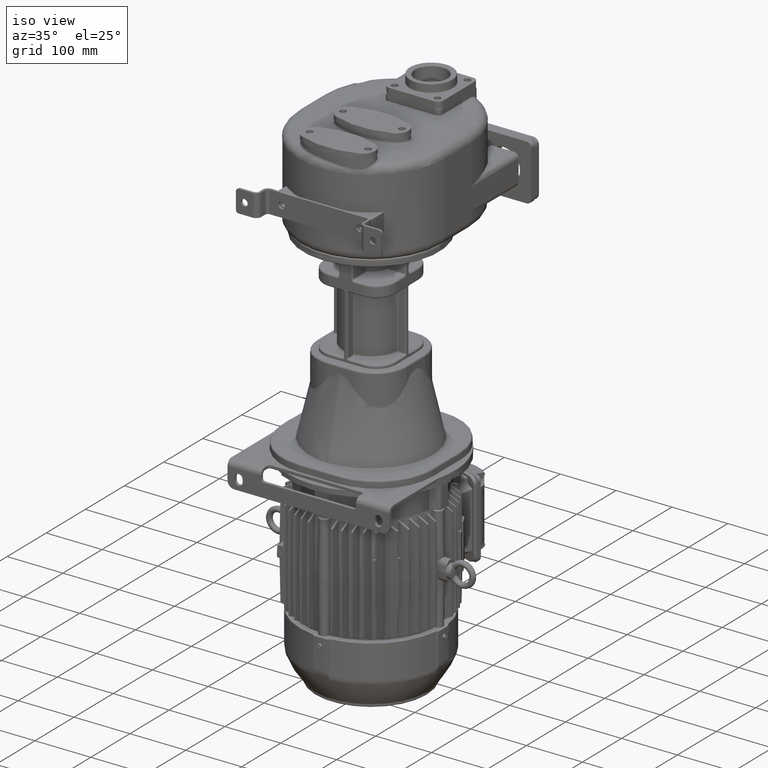
[diagram: clean part render]
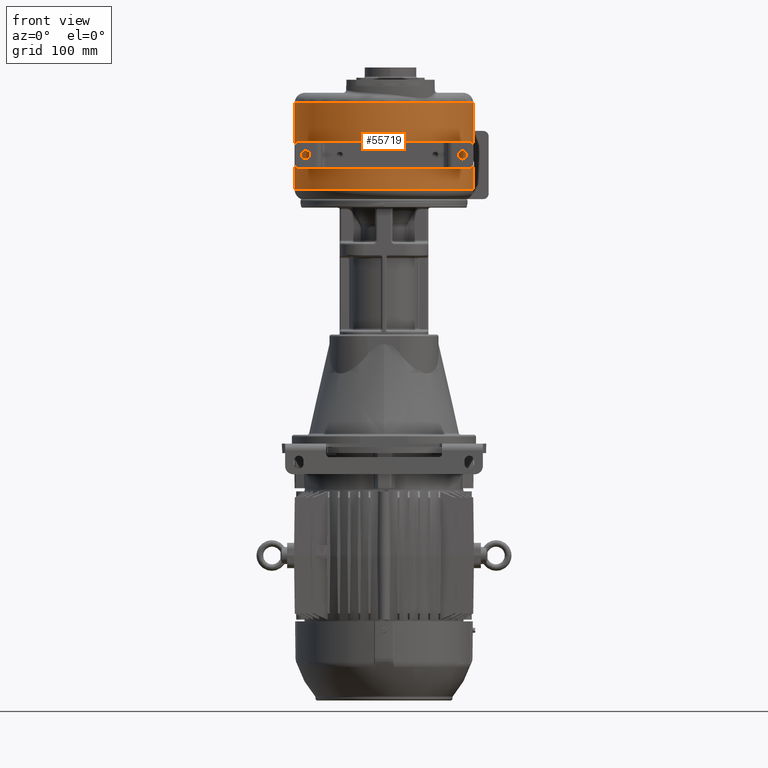
[diagram: tour spotlight — one face highlighted and labeled with its STEP entity id]
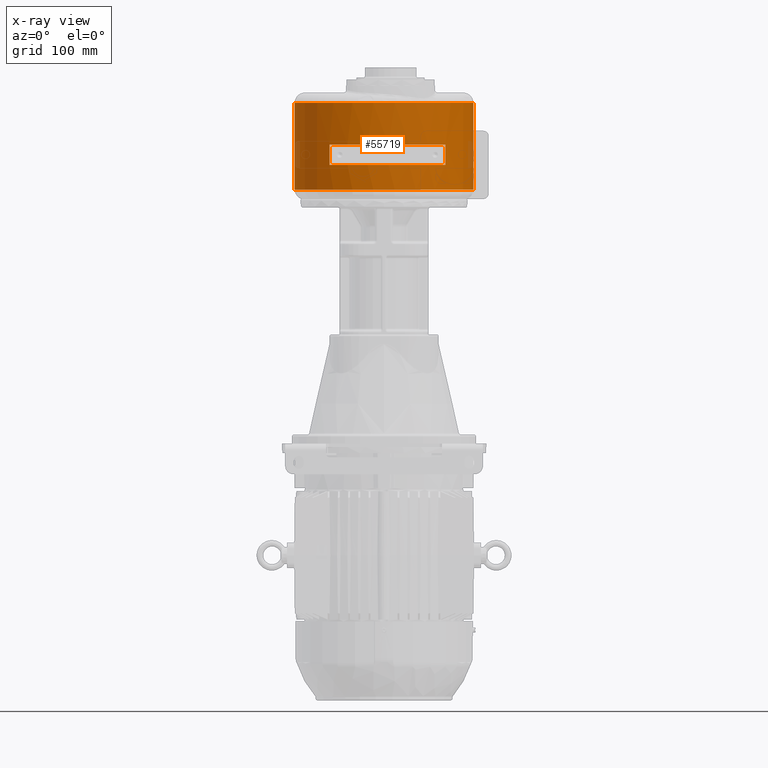
[diagram: x-ray of the same camera — body ghosted, this tour face saturated]
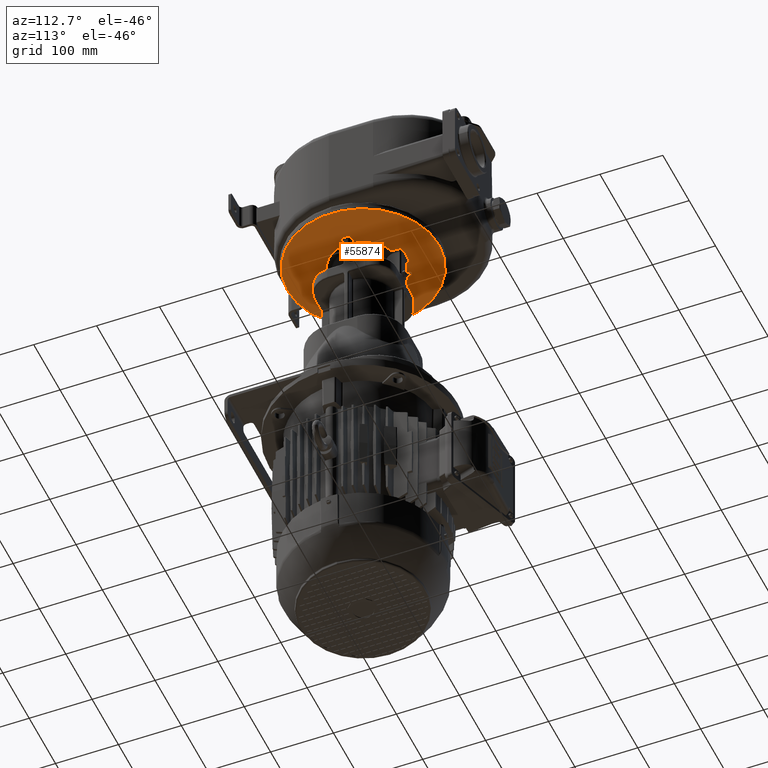
[diagram: tour spotlight — one face highlighted and labeled with its STEP entity id]
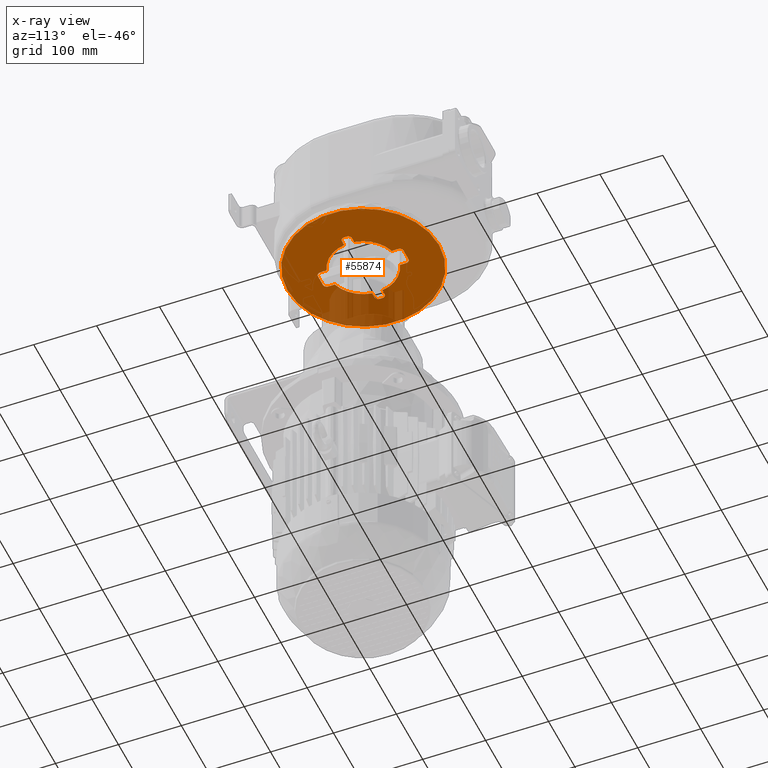
[diagram: x-ray of the same camera — body ghosted, this tour face saturated]
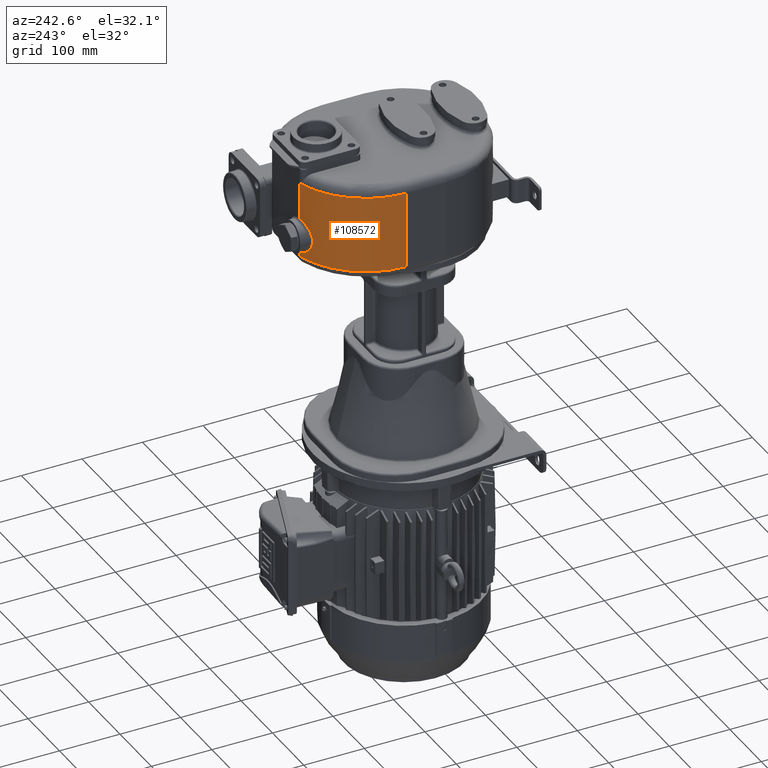
[diagram: tour spotlight — one face highlighted and labeled with its STEP entity id]
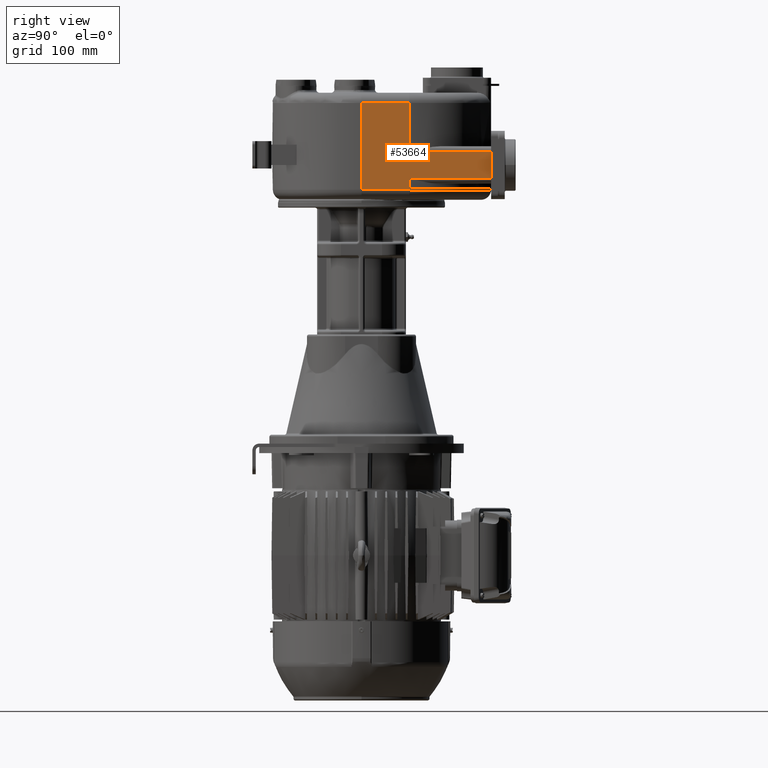
[diagram: tour spotlight — one face highlighted and labeled with its STEP entity id]
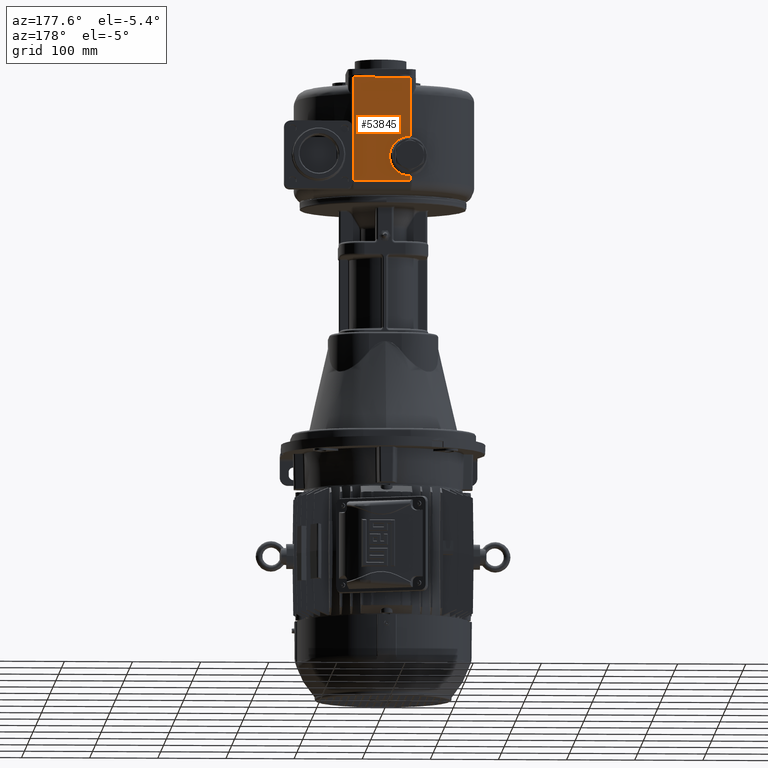
[diagram: tour spotlight — one face highlighted and labeled with its STEP entity id]
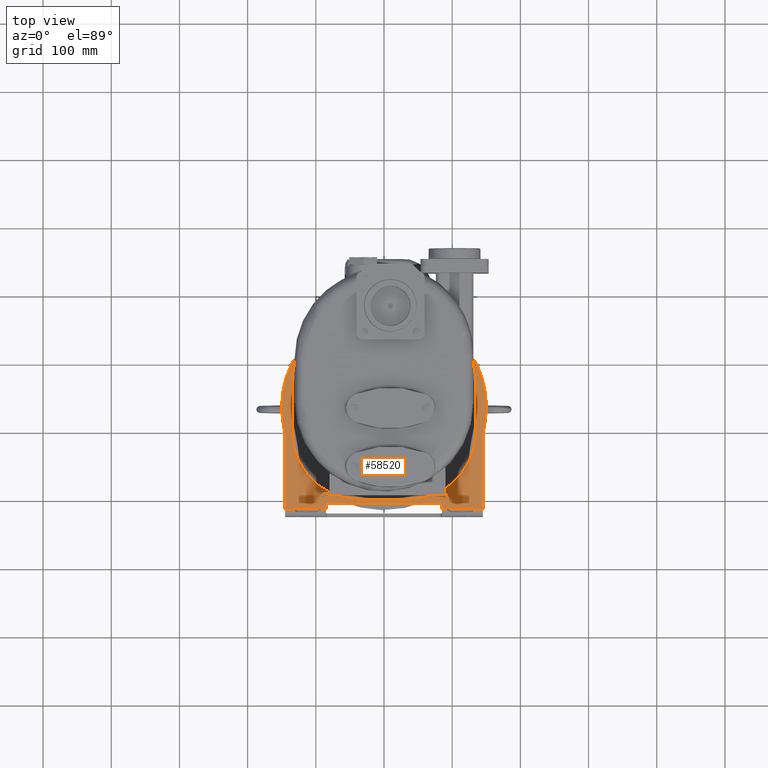
[diagram: tour spotlight — one face highlighted and labeled with its STEP entity id]
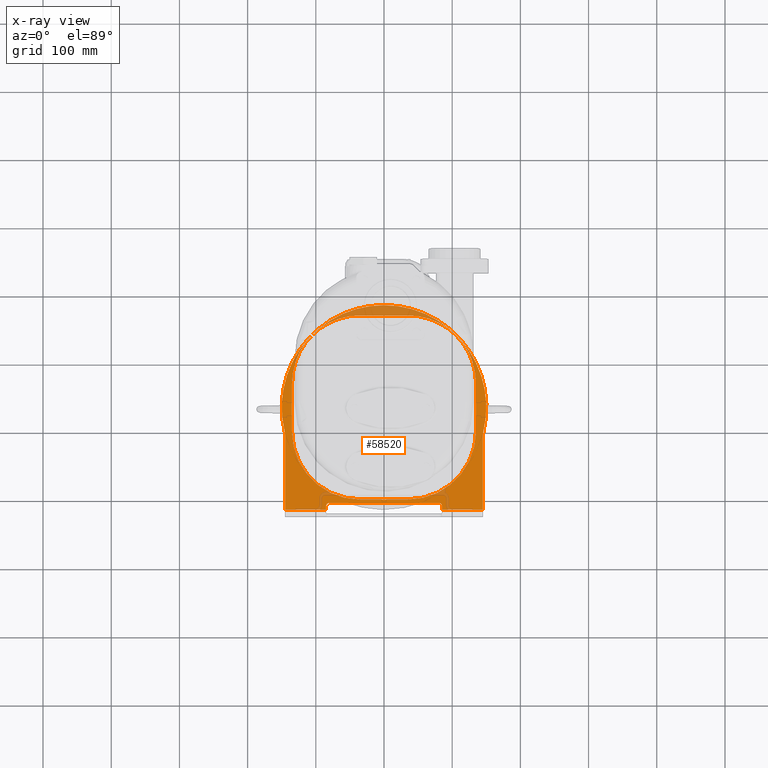
[diagram: x-ray of the same camera — body ghosted, this tour face saturated]
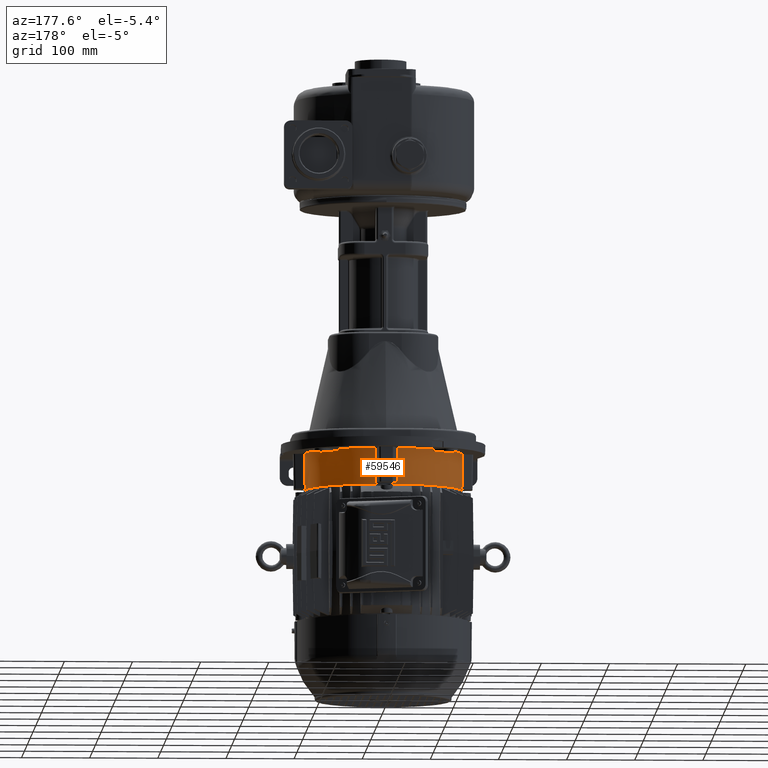
[diagram: tour spotlight — one face highlighted and labeled with its STEP entity id]
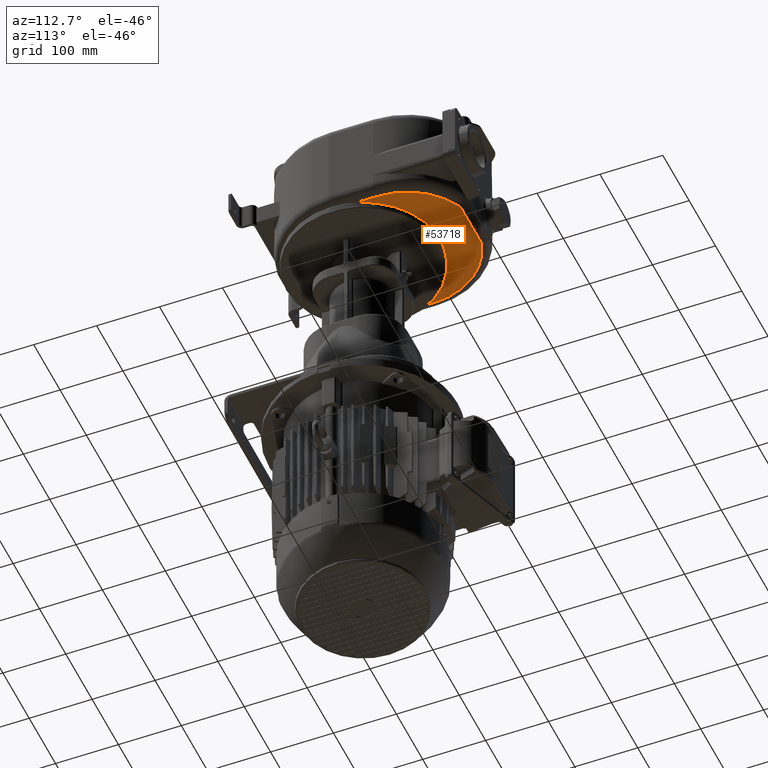
[diagram: tour spotlight — one face highlighted and labeled with its STEP entity id]
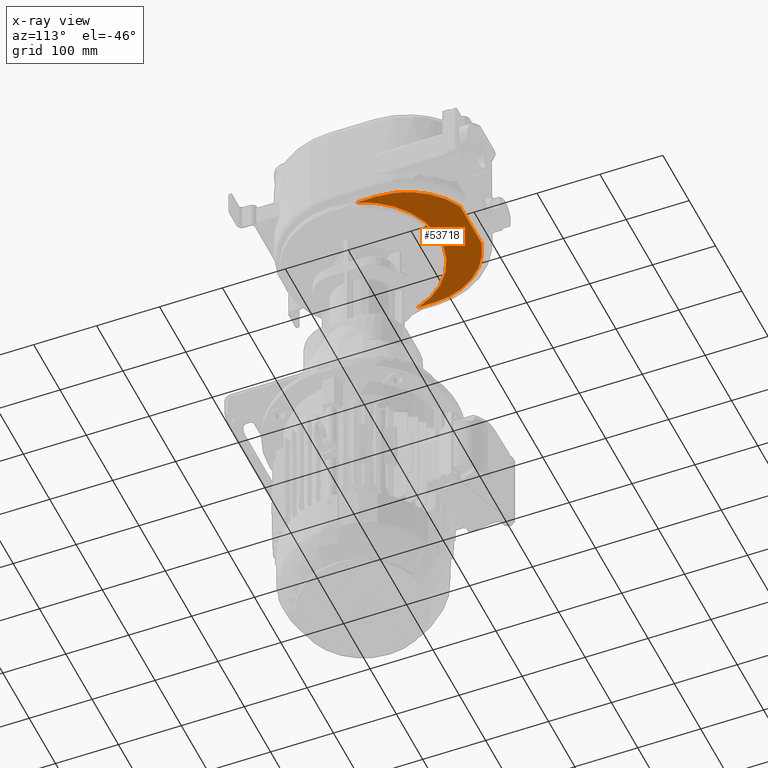
[diagram: x-ray of the same camera — body ghosted, this tour face saturated]
A machine part: a face-by-face anatomy tour. The part has 2962 B-rep faces; the first image is the clean iso view, then the 8 largest visible faces are spotlighted one at a time (largest first), each with its STEP entity span.

Face 1 — front view, entity #55719. An x-ray twin of the same camera follows (body ghosted, this face saturated) — the face is partly hidden behind the body. In plain terms, the highlighted cylindrical surface (partial cylindrical patch) has radius 131 mm, axis along (0, 0, -1).
Definition (entity closure, byte-faithful):
#2823=CARTESIAN_POINT('',(0.E0,1.31E2,-5.1E1));
#2824=DIRECTION('',(0.E0,0.E0,-1.E0));
#2825=DIRECTION('',(1.E0,0.E0,0.E0));
#2826=AXIS2_PLACEMENT_3D('',#2823,#2824,#2825);
#2828=CARTESIAN_POINT('',(0.E0,1.31E2,7.6E1));
#2829=DIRECTION('',(0.E0,0.E0,1.E0));
#2830=DIRECTION('',(-1.E0,0.E0,0.E0));
#2831=AXIS2_PLACEMENT_3D('',#2828,#2829,#2830);
#2833=DIRECTION('',(0.E0,-7.027099811927E-14,1.E0));
#2834=VECTOR('',#2833,1.27E2);
#2835=CARTESIAN_POINT('',(1.31E2,1.31E2,-5.1E1));
#2836=LINE('',#2835,#2834);
#2837=DIRECTION('',(0.E0,0.E0,-1.E0));
#2838=VECTOR('',#2837,3.E1);
#2839=CARTESIAN_POINT('',(9.E1,3.581071488870E1,1.5E1));
#2840=LINE('',#2839,#2838);
#2841=CARTESIAN_POINT('',(0.E0,1.31E2,1.5E1));
#2842=DIRECTION('',(0.E0,0.E0,-1.E0));
#2843=DIRECTION('',(6.870229007634E-1,-7.266357642084E-1,0.E0));
#2844=AXIS2_PLACEMENT_3D('',#2841,#2842,#2843);
#2846=DIRECTION('',(0.E0,0.E0,-1.E0));
#2847=VECTOR('',#2846,3.E1);
#2848=CARTESIAN_POINT('',(-8.E1,2.726476008607E1,1.5E1));
#2849=LINE('',#2848,#2847);
#2850=CARTESIAN_POINT('',(0.E0,1.31E2,-1.5E1));
#2851=DIRECTION('',(0.E0,0.E0,-1.E0));
#2852=DIRECTION('',(6.870229007634E-1,-7.266357642084E-1,0.E0));
#2853=AXIS2_PLACEMENT_3D('',#2850,#2851,#2852);
#42074=DIRECTION('',(0.E0,1.304713117947E-13,1.E0));
#42075=VECTOR('',#42074,1.27E2);
#42076=CARTESIAN_POINT('',(-1.31E2,1.31E2,-5.1E1));
#42077=LINE('',#42076,#42075);
#44123=CARTESIAN_POINT('',(9.E1,3.581071488870E1,-1.5E1));
#44124=VERTEX_POINT('',#44123);
#44125=CARTESIAN_POINT('',(9.E1,3.581071488870E1,1.5E1));
#44126=VERTEX_POINT('',#44125);
#44207=CARTESIAN_POINT('',(-8.E1,2.726476008607E1,1.5E1));
#44208=VERTEX_POINT('',#44207);
#44209=CARTESIAN_POINT('',(-8.E1,2.726476008607E1,-1.5E1));
#44210=VERTEX_POINT('',#44209);
#44221=CARTESIAN_POINT('',(1.31E2,1.31E2,7.6E1));
#44222=VERTEX_POINT('',#44221);
#44223=CARTESIAN_POINT('',(-1.31E2,1.31E2,7.6E1));
#44224=VERTEX_POINT('',#44223);
#44253=CARTESIAN_POINT('',(1.31E2,1.31E2,-5.1E1));
#44254=VERTEX_POINT('',#44253);
#44255=CARTESIAN_POINT('',(-1.31E2,1.31E2,-5.1E1));
#44256=VERTEX_POINT('',#44255);
#55696=CARTESIAN_POINT('',(0.E0,1.31E2,-6.6E1));
#55697=DIRECTION('',(0.E0,0.E0,-1.E0));
#55698=DIRECTION('',(-1.E0,0.E0,0.E0));
#55699=AXIS2_PLACEMENT_3D('',#55696,#55697,#55698);
#55700=CYLINDRICAL_SURFACE('',#55699,1.31E2);
#55702=ORIENTED_EDGE('',*,*,#55701,.T.);
#55704=ORIENTED_EDGE('',*,*,#55703,.T.);
#55705=ORIENTED_EDGE('',*,*,#55660,.T.);
#55706=ORIENTED_EDGE('',*,*,#53654,.F.);
#55707=EDGE_LOOP('',(#55702,#55704,#55705,#55706));
#55708=FACE_OUTER_BOUND('',#55707,.F.);
#55710=ORIENTED_EDGE('',*,*,#55709,.F.);
#55712=ORIENTED_EDGE('',*,*,#55711,.T.);
#55714=ORIENTED_EDGE('',*,*,#55713,.T.);
#55716=ORIENTED_EDGE('',*,*,#55715,.F.);
#55717=EDGE_LOOP('',(#55710,#55712,#55714,#55716));
#55718=FACE_BOUND('',#55717,.F.);
#55719=ADVANCED_FACE('',(#55708,#55718),#55700,.T.);
#2827=CIRCLE('',#2826,1.31E2);
#2832=CIRCLE('',#2831,1.31E2);
#2845=CIRCLE('',#2844,1.31E2);
#2854=CIRCLE('',#2853,1.31E2);
#53654=EDGE_CURVE('',#44254,#44222,#2836,.T.);
#55660=EDGE_CURVE('',#44224,#44222,#2832,.T.);
#55701=EDGE_CURVE('',#44254,#44256,#2827,.T.);
#55703=EDGE_CURVE('',#44256,#44224,#42077,.T.);
#55709=EDGE_CURVE('',#44126,#44124,#2840,.T.);
#55711=EDGE_CURVE('',#44126,#44208,#2845,.T.);
#55713=EDGE_CURVE('',#44208,#44210,#2849,.T.);
#55715=EDGE_CURVE('',#44124,#44210,#2854,.T.);

Face 2 — auxiliary view, entity #55874. An x-ray twin of the same camera follows (body ghosted, this face saturated) — the face is partly hidden behind the body. In plain terms, the highlighted planar face has unit normal (0, 0, -1).
Definition (entity closure, byte-faithful):
#2926=CARTESIAN_POINT('',(3.543259984733E-14,1.31E2,-7.75E1));
#2927=DIRECTION('',(0.E0,0.E0,1.E0));
#2928=DIRECTION('',(0.E0,1.E0,0.E0));
#2929=AXIS2_PLACEMENT_3D('',#2926,#2927,#2928);
#2931=CARTESIAN_POINT('',(3.543259984733E-14,1.31E2,-7.75E1));
#2932=DIRECTION('',(0.E0,0.E0,1.E0));
#2933=DIRECTION('',(0.E0,-1.E0,0.E0));
#2934=AXIS2_PLACEMENT_3D('',#2931,#2932,#2933);
#2936=DIRECTION('',(1.E0,7.240056507707E-13,0.E0));
#2937=VECTOR('',#2936,1.899999999955E1);
#2938=CARTESIAN_POINT('',(-9.499999999882E0,1.99E2,-7.75E1));
#2939=LINE('',#2938,#2937);
#2940=CARTESIAN_POINT('',(9.5E0,1.93E2,-7.75E1));
#2941=DIRECTION('',(0.E0,0.E0,-1.E0));
#2942=DIRECTION('',(0.E0,1.E0,0.E0));
#2943=AXIS2_PLACEMENT_3D('',#2940,#2941,#2942);
#2945=DIRECTION('',(3.369104445484E-12,-1.E0,-7.138413883412E-8));
#2946=VECTOR('',#2945,1.030402656674E1);
#2947=CARTESIAN_POINT('',(1.549999999997E1,1.929999999999E2,-7.75E1));
#2948=LINE('',#2947,#2946);
#2949=CARTESIAN_POINT('',(3.543259984733E-14,1.31E2,-7.75E1));
#2950=DIRECTION('',(0.E0,0.E0,-1.E0));
#2951=DIRECTION('',(2.871984267745E-1,9.578711101491E-1,0.E0));
#2952=AXIS2_PLACEMENT_3D('',#2949,#2950,#2951);
#2954=DIRECTION('',(1.E0,-2.431468840314E-12,1.020586658417E-7));
#2955=VECTOR('',#2954,8.626563997804E0);
#2956=CARTESIAN_POINT('',(5.337343600186E1,1.39E2,-7.750000088042E1));
#2957=LINE('',#2956,#2955);
#2958=CARTESIAN_POINT('',(6.2E1,1.33E2,-7.75E1));
#2959=DIRECTION('',(0.E0,0.E0,-1.E0));
#2960=DIRECTION('',(0.E0,1.E0,0.E0));
#2961=AXIS2_PLACEMENT_3D('',#2958,#2959,#2960);
#2963=DIRECTION('',(3.435474127789E-12,-1.E0,0.E0));
#2964=VECTOR('',#2963,3.999999999548E0);
#2965=CARTESIAN_POINT('',(6.799999999997E1,1.329999999999E2,-7.75E1));
#2966=LINE('',#2965,#2964);
#2967=CARTESIAN_POINT('',(6.2E1,1.29E2,-7.75E1));
#2968=DIRECTION('',(0.E0,0.E0,-1.E0));
#2969=DIRECTION('',(1.E0,0.E0,0.E0));
#2970=AXIS2_PLACEMENT_3D('',#2967,#2968,#2969);
#2972=DIRECTION('',(-1.E0,-4.021148671441E-12,-1.020533960092E-7));
#2973=VECTOR('',#2972,8.626563998037E0);
#2974=CARTESIAN_POINT('',(6.199999999988E1,1.23E2,-7.75E1));
#2975=LINE('',#2974,#2973);
#2976=CARTESIAN_POINT('',(3.543259984733E-14,1.31E2,-7.75E1));
#2977=DIRECTION('',(0.E0,0.E0,-1.E0));
#2978=DIRECTION('',(9.889526977755E-1,-1.482314459304E-1,0.E0));
#2979=AXIS2_PLACEMENT_3D('',#2976,#2977,#2978);
#2981=DIRECTION('',(-2.034943912128E-12,-1.E0,7.140881744270E-8));
#2982=VECTOR('',#2981,1.030402656668E1);
#2983=CARTESIAN_POINT('',(1.55E1,7.930402656702E1,-7.750000073580E1));
#2984=LINE('',#2983,#2982);
#2985=CARTESIAN_POINT('',(9.5E0,6.9E1,-7.75E1));
#2986=DIRECTION('',(0.E0,0.E0,-1.E0));
#2987=DIRECTION('',(1.E0,0.E0,0.E0));
#2988=AXIS2_PLACEMENT_3D('',#2985,#2986,#2987);
#2990=DIRECTION('',(-1.E0,-7.232577110488E-13,0.E0));
#2991=VECTOR('',#2990,1.899999999955E1);
#2992=CARTESIAN_POINT('',(9.499999999882E0,6.300000000003E1,-7.75E1));
#2993=LINE('',#2992,#2991);
#2994=CARTESIAN_POINT('',(-9.5E0,6.9E1,-7.75E1));
#2995=DIRECTION('',(0.E0,0.E0,-1.E0));
#2996=DIRECTION('',(0.E0,-1.E0,0.E0));
#2997=AXIS2_PLACEMENT_3D('',#2994,#2995,#2996);
#2999=DIRECTION('',(-3.368414867744E-12,1.E0,-7.138413883412E-8));
#3000=VECTOR('',#2999,1.030402656674E1);
#3001=CARTESIAN_POINT('',(-1.549999999997E1,6.900000000012E1,-7.75E1));
#3002=LINE('',#3001,#3000);
#3003=CARTESIAN_POINT('',(3.543259984733E-14,1.31E2,-7.75E1));
#3004=DIRECTION('',(0.E0,0.E0,-1.E0));
#3005=DIRECTION('',(-2.871984267745E-1,-9.578711101491E-1,0.E0));
#3006=AXIS2_PLACEMENT_3D('',#3003,#3004,#3005);
#3008=DIRECTION('',(-1.E0,2.428174167089E-12,1.020586658417E-7));
#3009=VECTOR('',#3008,8.626563997804E0);
#3010=CARTESIAN_POINT('',(-5.337343600186E1,1.23E2,-7.750000088042E1));
#3011=LINE('',#3010,#3009);
#3012=CARTESIAN_POINT('',(-6.2E1,1.29E2,-7.75E1));
#3013=DIRECTION('',(0.E0,0.E0,-1.E0));
#3014=DIRECTION('',(0.E0,-1.E0,0.E0));
#3015=AXIS2_PLACEMENT_3D('',#3012,#3013,#3014);
#3017=DIRECTION('',(-3.439026841468E-12,1.E0,0.E0));
#3018=VECTOR('',#3017,3.999999999548E0);
#3019=CARTESIAN_POINT('',(-6.799999999997E1,1.290000000001E2,-7.75E1));
#3020=LINE('',#3019,#3018);
#3021=CARTESIAN_POINT('',(-6.2E1,1.33E2,-7.75E1));
#3022=DIRECTION('',(0.E0,0.E0,-1.E0));
#3023=DIRECTION('',(-1.E0,0.E0,0.E0));
#3024=AXIS2_PLACEMENT_3D('',#3021,#3022,#3023);
#3026=DIRECTION('',(1.E0,4.026090681279E-12,-1.020533993038E-7));
#3027=VECTOR('',#3026,8.626563998037E0);
#3028=CARTESIAN_POINT('',(-6.199999999988E1,1.39E2,-7.75E1));
#3029=LINE('',#3028,#3027);
#3030=CARTESIAN_POINT('',(3.543259984733E-14,1.31E2,-7.75E1));
#3031=DIRECTION('',(0.E0,0.E0,-1.E0));
#3032=DIRECTION('',(-9.889526977755E-1,1.482314459304E-1,0.E0));
#3033=AXIS2_PLACEMENT_3D('',#3030,#3031,#3032);
#3035=DIRECTION('',(2.035288700998E-12,1.E0,7.140882020101E-8));
#3036=VECTOR('',#3035,1.030402656668E1);
#3037=CARTESIAN_POINT('',(-1.55E1,1.826959734330E2,-7.750000073580E1));
#3038=LINE('',#3037,#3036);
#3039=CARTESIAN_POINT('',(-9.5E0,1.93E2,-7.75E1));
#3040=DIRECTION('',(0.E0,0.E0,-1.E0));
#3041=DIRECTION('',(-1.E0,0.E0,0.E0));
#3042=AXIS2_PLACEMENT_3D('',#3039,#3040,#3041);
#45193=CARTESIAN_POINT('',(9.170296260025E-14,2.515E2,-7.75E1));
#45194=CARTESIAN_POINT('',(-3.559475683531E-14,1.05E1,-7.75E1));
#45195=VERTEX_POINT('',#45193);
#45196=VERTEX_POINT('',#45194);
#45263=CARTESIAN_POINT('',(-9.499999999882E0,1.99E2,-7.75E1));
#45264=CARTESIAN_POINT('',(9.499999999665E0,1.99E2,-7.75E1));
#45265=VERTEX_POINT('',#45263);
#45266=VERTEX_POINT('',#45264);
#45355=CARTESIAN_POINT('',(9.499999999882E0,6.300000000003E1,-7.75E1));
#45356=CARTESIAN_POINT('',(-9.499999999665E0,6.300000000002E1,-7.75E1));
#45357=VERTEX_POINT('',#45355);
#45358=VERTEX_POINT('',#45356);
#45453=CARTESIAN_POINT('',(1.55E1,1.93E2,-7.75E1));
#45454=VERTEX_POINT('',#45453);
#45455=CARTESIAN_POINT('',(1.55E1,6.9E1,-7.75E1));
#45456=VERTEX_POINT('',#45455);
#45457=CARTESIAN_POINT('',(-1.55E1,6.9E1,-7.75E1));
#45458=VERTEX_POINT('',#45457);
#45459=CARTESIAN_POINT('',(-1.55E1,1.93E2,-7.75E1));
#45460=VERTEX_POINT('',#45459);
#45461=CARTESIAN_POINT('',(6.2E1,1.39E2,-7.75E1));
#45462=VERTEX_POINT('',#45461);
#45463=CARTESIAN_POINT('',(6.8E1,1.33E2,-7.75E1));
#45464=VERTEX_POINT('',#45463);
#45465=CARTESIAN_POINT('',(6.8E1,1.29E2,-7.75E1));
#45466=VERTEX_POINT('',#45465);
#45467=CARTESIAN_POINT('',(6.2E1,1.23E2,-7.75E1));
#45468=VERTEX_POINT('',#45467);
#45469=CARTESIAN_POINT('',(-6.2E1,1.23E2,-7.75E1));
#45470=VERTEX_POINT('',#45469);
#45471=CARTESIAN_POINT('',(-6.8E1,1.29E2,-7.75E1));
#45472=VERTEX_POINT('',#45471);
#45473=CARTESIAN_POINT('',(-6.8E1,1.33E2,-7.75E1));
#45474=VERTEX_POINT('',#45473);
#45475=CARTESIAN_POINT('',(-6.2E1,1.39E2,-7.75E1));
#45476=VERTEX_POINT('',#45475);
#45481=CARTESIAN_POINT('',(-1.55E1,1.826959734330E2,-7.750000073580E1));
#45482=VERTEX_POINT('',#45481);
#45487=CARTESIAN_POINT('',(-5.337343600185E1,1.39E2,-7.750000088037E1));
#45488=VERTEX_POINT('',#45487);
#45489=CARTESIAN_POINT('',(-5.337343600186E1,1.23E2,-7.750000088042E1));
#45490=VERTEX_POINT('',#45489);
#45495=CARTESIAN_POINT('',(-1.55E1,7.930402656686E1,-7.750000073554E1));
#45496=VERTEX_POINT('',#45495);
#45497=CARTESIAN_POINT('',(1.55E1,7.930402656702E1,-7.750000073580E1));
#45498=VERTEX_POINT('',#45497);
#45503=CARTESIAN_POINT('',(5.337343600185E1,1.23E2,-7.750000088037E1));
#45504=VERTEX_POINT('',#45503);
#45505=CARTESIAN_POINT('',(5.337343600186E1,1.39E2,-7.750000088042E1));
#45506=VERTEX_POINT('',#45505);
#45511=CARTESIAN_POINT('',(1.55E1,1.826959734331E2,-7.750000073554E1));
#45512=VERTEX_POINT('',#45511);
#55815=CARTESIAN_POINT('',(3.543259984733E-14,1.31E2,-7.75E1));
#55816=DIRECTION('',(0.E0,0.E0,-1.E0));
#55817=DIRECTION('',(0.E0,1.E0,0.E0));
#55818=AXIS2_PLACEMENT_3D('',#55815,#55816,#55817);
#55819=PLANE('',#55818);
#55820=ORIENTED_EDGE('',*,*,#55778,.T.);
#55821=ORIENTED_EDGE('',*,*,#55793,.T.);
#55822=EDGE_LOOP('',(#55820,#55821));
#55823=FACE_OUTER_BOUND('',#55822,.F.);
#55825=ORIENTED_EDGE('',*,*,#55824,.T.);
#55827=ORIENTED_EDGE('',*,*,#55826,.T.);
#55829=ORIENTED_EDGE('',*,*,#55828,.T.);
#55831=ORIENTED_EDGE('',*,*,#55830,.T.);
#55833=ORIENTED_EDGE('',*,*,#55832,.T.);
#55835=ORIENTED_EDGE('',*,*,#55834,.T.);
#55837=ORIENTED_EDGE('',*,*,#55836,.T.);
#55839=ORIENTED_EDGE('',*,*,#55838,.T.);
#55841=ORIENTED_EDGE('',*,*,#55840,.T.);
#55843=ORIENTED_EDGE('',*,*,#55842,.T.);
#55845=ORIENTED_EDGE('',*,*,#55844,.T.);
#55847=ORIENTED_EDGE('',*,*,#55846,.T.);
#55849=ORIENTED_EDGE('',*,*,#55848,.T.);
#55851=ORIENTED_EDGE('',*,*,#55850,.T.);
#55853=ORIENTED_EDGE('',*,*,#55852,.T.);
#55855=ORIENTED_EDGE('',*,*,#55854,.T.);
#55857=ORIENTED_EDGE('',*,*,#55856,.T.);
#55859=ORIENTED_EDGE('',*,*,#55858,.T.);
#55861=ORIENTED_EDGE('',*,*,#55860,.T.);
#55863=ORIENTED_EDGE('',*,*,#55862,.T.);
#55865=ORIENTED_EDGE('',*,*,#55864,.T.);
#55867=ORIENTED_EDGE('',*,*,#55866,.T.);
#55869=ORIENTED_EDGE('',*,*,#55868,.T.);
#55871=ORIENTED_EDGE('',*,*,#55870,.T.);
#55872=EDGE_LOOP('',(#55825,#55827,#55829,#55831,#55833,#55835,#55837,#55839,
#55841,#55843,#55845,#55847,#55849,#55851,#55853,#55855,#55857,#55859,#55861,
#55863,#55865,#55867,#55869,#55871));
#55873=FACE_BOUND('',#55872,.F.);
#55874=ADVANCED_FACE('',(#55823,#55873),#55819,.T.);
#2930=CIRCLE('',#2929,1.205E2);
#2935=CIRCLE('',#2934,1.205E2);
#2944=CIRCLE('',#2943,6.E0);
#2953=CIRCLE('',#2952,5.396965511460E1);
#2962=CIRCLE('',#2961,6.E0);
#2971=CIRCLE('',#2970,6.E0);
#2980=CIRCLE('',#2979,5.396965511460E1);
#2989=CIRCLE('',#2988,6.E0);
#2998=CIRCLE('',#2997,6.E0);
#3007=CIRCLE('',#3006,5.396965511460E1);
#3016=CIRCLE('',#3015,6.E0);
#3025=CIRCLE('',#3024,6.E0);
#3034=CIRCLE('',#3033,5.396965511460E1);
#3043=CIRCLE('',#3042,6.E0);
#55778=EDGE_CURVE('',#45195,#45196,#2930,.T.);
#55793=EDGE_CURVE('',#45196,#45195,#2935,.T.);
#55824=EDGE_CURVE('',#45265,#45266,#2939,.T.);
#55826=EDGE_CURVE('',#45266,#45454,#2944,.T.);
#55828=EDGE_CURVE('',#45454,#45512,#2948,.T.);
#55830=EDGE_CURVE('',#45512,#45506,#2953,.T.);
#55832=EDGE_CURVE('',#45506,#45462,#2957,.T.);
#55834=EDGE_CURVE('',#45462,#45464,#2962,.T.);
#55836=EDGE_CURVE('',#45464,#45466,#2966,.T.);
#55838=EDGE_CURVE('',#45466,#45468,#2971,.T.);
#55840=EDGE_CURVE('',#45468,#45504,#2975,.T.);
#55842=EDGE_CURVE('',#45504,#45498,#2980,.T.);
#55844=EDGE_CURVE('',#45498,#45456,#2984,.T.);
#55846=EDGE_CURVE('',#45456,#45357,#2989,.T.);
#55848=EDGE_CURVE('',#45357,#45358,#2993,.T.);
#55850=EDGE_CURVE('',#45358,#45458,#2998,.T.);
#55852=EDGE_CURVE('',#45458,#45496,#3002,.T.);
#55854=EDGE_CURVE('',#45496,#45490,#3007,.T.);
#55856=EDGE_CURVE('',#45490,#45470,#3011,.T.);
#55858=EDGE_CURVE('',#45470,#45472,#3016,.T.);
#55860=EDGE_CURVE('',#45472,#45474,#3020,.T.);
#55862=EDGE_CURVE('',#45474,#45476,#3025,.T.);
#55864=EDGE_CURVE('',#45476,#45488,#3029,.T.);
#55866=EDGE_CURVE('',#45488,#45482,#3034,.T.);
#55868=EDGE_CURVE('',#45482,#45460,#3038,.T.);
#55870=EDGE_CURVE('',#45460,#45265,#3043,.T.);

Face 3 — auxiliary view, entity #108572. In plain terms, the highlighted cylindrical surface (partial cylindrical patch) has radius 131 mm, axis along (0, 0, -1).
Definition (entity closure, byte-faithful):
#1018=DIRECTION('',(5.932800137636E-8,-2.165070057069E-7,-1.E0));
#1019=VECTOR('',#1018,6.246469671372E1);
#1020=CARTESIAN_POINT('',(-3.461382113821E1,3.207156827433E2,7.6E1));
#1021=LINE('',#1020,#1019);
#1022=CARTESIAN_POINT('',(-3.461381743231E1,3.207156692193E2,1.353530328629E1));
#40880=CARTESIAN_POINT('',(-5.773705756589E1,3.119615321213E2,
-1.500000000183E1));
#40881=CARTESIAN_POINT('',(-5.773700650299E1,3.119615729370E2,
-1.471979193479E1));
#40882=CARTESIAN_POINT('',(-5.772877871125E1,3.119655142521E2,
-1.415990422692E1));
#40883=CARTESIAN_POINT('',(-5.769338812834E1,3.119829241291E2,
-1.332152960917E1));
#40884=CARTESIAN_POINT('',(-5.763455533248E1,3.120117599943E2,
-1.248499565868E1));
#40885=CARTESIAN_POINT('',(-5.755243929547E1,3.120519644456E2,
-1.165055400183E1));
#40886=CARTESIAN_POINT('',(-5.744693297920E1,3.121035123146E2,
-1.081849977560E1));
#40887=CARTESIAN_POINT('',(-5.731783751803E1,3.121664272052E2,
-9.989178546406E0));
#40888=CARTESIAN_POINT('',(-5.716513321147E1,3.122406216841E2,
-9.162753359095E0));
#40889=CARTESIAN_POINT('',(-5.698874526710E1,3.123260193360E2,
-8.339077020115E0));
#40890=CARTESIAN_POINT('',(-5.678843201933E1,3.124226059412E2,
-7.517947577629E0));
#40891=CARTESIAN_POINT('',(-5.656400634136E1,3.125303218916E2,
-6.699811194374E0));
#40892=CARTESIAN_POINT('',(-5.631547272090E1,3.126489972479E2,
-5.885946101151E0));
#40893=CARTESIAN_POINT('',(-5.604289410321E1,3.127784174318E2,
-5.077531607129E0));
#40894=CARTESIAN_POINT('',(-5.574624684742E1,3.129183926659E2,
-4.274999448405E0));
#40895=CARTESIAN_POINT('',(-5.542534358308E1,3.130687926666E2,
-3.478599380002E0));
#40896=CARTESIAN_POINT('',(-5.508016612820E1,3.132293895265E2,
-2.689135869031E0));
#40897=CARTESIAN_POINT('',(-5.471088791610E1,3.133998508923E2,
-1.907871493069E0));
#40898=CARTESIAN_POINT('',(-5.431766879734E1,3.135798376968E2,
-1.135787706952E0));
#40899=CARTESIAN_POINT('',(-5.390057125121E1,3.137690421154E2,
-3.735130064270E-1));
#40900=CARTESIAN_POINT('',(-5.345967930607E1,3.139671329534E2,
3.782239298047E-1));
#40901=CARTESIAN_POINT('',(-5.299505585176E1,3.141737755542E2,
1.118704702473E0));
#40902=CARTESIAN_POINT('',(-5.250687005967E1,3.143885757030E2,
1.847063211079E0));
#40903=CARTESIAN_POINT('',(-5.199552865337E1,3.146110264787E2,
2.562190320598E0));
#40904=CARTESIAN_POINT('',(-5.146146038803E1,3.148406073503E2,
3.263030572095E0));
#40905=CARTESIAN_POINT('',(-5.090515523564E1,3.150767690905E2,
3.948529100560E0));
#40906=CARTESIAN_POINT('',(-5.032715384076E1,3.153189411287E2,
4.617684131165E0));
#40907=CARTESIAN_POINT('',(-4.972805203141E1,3.155665323186E2,
5.269517973711E0));
#40908=CARTESIAN_POINT('',(-4.910849512484E1,3.158189360605E2,
5.903080270716E0));
#40909=CARTESIAN_POINT('',(-4.846920224601E1,3.160755233606E2,
6.517440324305E0));
#40910=CARTESIAN_POINT('',(-4.781094808026E1,3.163356535477E2,
7.111704538705E0));
#40911=CARTESIAN_POINT('',(-4.713456037935E1,3.165986782224E2,
7.685016538796E0));
#40912=CARTESIAN_POINT('',(-4.644090225866E1,3.168639509379E2,
8.236581843368E0));
#40913=CARTESIAN_POINT('',(-4.573086183456E1,3.171308333221E2,
8.765670874488E0));
#40914=CARTESIAN_POINT('',(-4.500537351487E1,3.173986892256E2,
9.271595233022E0));
#40915=CARTESIAN_POINT('',(-4.426540455317E1,3.176668922025E2,
9.753721954630E0));
#40916=CARTESIAN_POINT('',(-4.351193831816E1,3.179348334244E2,
1.021149000445E1));
#40917=CARTESIAN_POINT('',(-4.274599164788E1,3.182019169865E2,
1.064438492775E1));
#40918=CARTESIAN_POINT('',(-4.196860516486E1,3.184675655182E2,
1.105194588644E1));
#40919=CARTESIAN_POINT('',(-4.118068364861E1,3.187312741837E2,
1.143386107843E1));
#40920=CARTESIAN_POINT('',(-4.038315321517E1,3.189925552704E2,
1.178985148128E1));
#40921=CARTESIAN_POINT('',(-3.957693739228E1,3.192509471154E2,
1.211967054134E1));
#40922=CARTESIAN_POINT('',(-3.876302732530E1,3.195059925964E2,
1.242309062989E1));
#40923=CARTESIAN_POINT('',(-3.794244189995E1,3.197572537146E2,
1.269993829885E1));
#40924=CARTESIAN_POINT('',(-3.711619453808E1,3.200043238586E2,
1.295008294979E1));
#40925=CARTESIAN_POINT('',(-3.628532732174E1,3.202468122981E2,
1.317343031402E1));
#40926=CARTESIAN_POINT('',(-3.545083698200E1,3.204843872489E2,
1.336998079285E1));
#40927=CARTESIAN_POINT('',(-3.489310197536E1,3.206391542512E2,
1.348314450911E1));
#40928=CARTESIAN_POINT('',(-3.461381743231E1,3.207156692193E2,
1.353530328629E1));
#40930=CARTESIAN_POINT('',(0.E0,1.943713778214E2,7.6E1));
#40931=DIRECTION('',(0.E0,0.E0,1.E0));
#40932=DIRECTION('',(-2.642276422764E-1,9.644603429157E-1,0.E0));
#40933=AXIS2_PLACEMENT_3D('',#40930,#40931,#40932);
#40935=DIRECTION('',(0.E0,0.E0,1.E0));
#40936=VECTOR('',#40935,1.27E2);
#40937=CARTESIAN_POINT('',(-1.31E2,1.943713778214E2,-5.1E1));
#40938=LINE('',#40937,#40936);
#40939=CARTESIAN_POINT('',(0.E0,1.943713778214E2,-5.1E1));
#40940=DIRECTION('',(0.E0,0.E0,-1.E0));
#40941=DIRECTION('',(-1.E0,0.E0,0.E0));
#40942=AXIS2_PLACEMENT_3D('',#40939,#40940,#40941);
#40944=CARTESIAN_POINT('',(-3.461381747986E1,3.207156693916E2,
-4.353530328622E1));
#40945=CARTESIAN_POINT('',(-3.489308685513E1,3.206391585231E2,
-4.348314702426E1));
#40946=CARTESIAN_POINT('',(-3.545079516872E1,3.204843988597E2,
-4.336998775174E1));
#40947=CARTESIAN_POINT('',(-3.628525673956E1,3.202468326070E2,
-4.317344574200E1));
#40948=CARTESIAN_POINT('',(-3.711610717530E1,3.200043496328E2,
-4.295010734811E1));
#40949=CARTESIAN_POINT('',(-3.794234393194E1,3.197572833412E2,
-4.269997035873E1));
#40950=CARTESIAN_POINT('',(-3.876292342543E1,3.195060247717E2,
-4.242312811298E1));
#40951=CARTESIAN_POINT('',(-3.957683237340E1,3.192509804026E2,
-4.211971186629E1));
#40952=CARTESIAN_POINT('',(-4.038305295792E1,3.189925877726E2,
-4.178989500646E1));
#40953=CARTESIAN_POINT('',(-4.118058964585E1,3.187313053259E2,
-4.143390461115E1));
#40954=CARTESIAN_POINT('',(-4.196851648215E1,3.184675955188E2,
-4.105198950175E1));
#40955=CARTESIAN_POINT('',(-4.274590502219E1,3.182019468898E2,
-4.064443199710E1));
#40956=CARTESIAN_POINT('',(-4.351185253399E1,3.179348636399E2,
-4.021154073633E1));
#40957=CARTESIAN_POINT('',(-4.426532500227E1,3.176669207793E2,
-3.975377224369E1));
#40958=CARTESIAN_POINT('',(-4.500530131202E1,3.173987156555E2,
-3.927164377859E1));
#40959=CARTESIAN_POINT('',(-4.573079785143E1,3.171308571759E2,
-3.876571740049E1));
#40960=CARTESIAN_POINT('',(-4.644084651114E1,3.168639720901E2,
-3.823662488888E1));
#40961=CARTESIAN_POINT('',(-4.713451080742E1,3.165986973470E2,
-3.768505702473E1));
#40962=CARTESIAN_POINT('',(-4.781090047952E1,3.163356722094E2,
-3.711174637761E1));
#40963=CARTESIAN_POINT('',(-4.846915596880E1,3.160755417945E2,
-3.651748342625E1));
#40964=CARTESIAN_POINT('',(-4.910845220947E1,3.158189534243E2,
-3.590312262919E1));
#40965=CARTESIAN_POINT('',(-4.972801700674E1,3.155665467106E2,
-3.526955524801E1));
#40966=CARTESIAN_POINT('',(-5.032713218657E1,3.153189501689E2,
-3.461770861388E1));
#40967=CARTESIAN_POINT('',(-5.090515118296E1,3.150767708356E2,
-3.394853372369E1));
#40968=CARTESIAN_POINT('',(-5.146147753925E1,3.148406000645E2,
-3.326301020747E1));
#40969=CARTESIAN_POINT('',(-5.199557045047E1,3.146110084506E2,
-3.256213570588E1));
#40970=CARTESIAN_POINT('',(-5.250694050937E1,3.143885449311E2,
-3.184696087094E1));
#40971=CARTESIAN_POINT('',(-5.299515842475E1,3.141737302390E2,
-3.111854561728E1));
#40972=CARTESIAN_POINT('',(-5.345981675202E1,3.139670715515E2,
-3.037800322680E1));
#40973=CARTESIAN_POINT('',(-5.390071893294E1,3.137689754485E2,
-2.962622547455E1));
#40974=CARTESIAN_POINT('',(-5.431781334472E1,3.135797718209E2,
-2.886393197717E1));
#40975=CARTESIAN_POINT('',(-5.471101874724E1,3.133997907367E2,
-2.809185665696E1));
#40976=CARTESIAN_POINT('',(-5.508028166778E1,3.132293359639E2,
-2.731063921043E1));
#40977=CARTESIAN_POINT('',(-5.542544488224E1,3.130687453588E2,
-2.652117944499E1));
#40978=CARTESIAN_POINT('',(-5.574635199377E1,3.129183432313E2,
-2.572471575803E1));
#40979=CARTESIAN_POINT('',(-5.604300792248E1,3.127783635666E2,
-2.492210459099E1));
#40980=CARTESIAN_POINT('',(-5.631559562348E1,3.126489387479E2,
-2.411363620951E1));
#40981=CARTESIAN_POINT('',(-5.656415327201E1,3.125302515662E2,
-2.329972847040E1));
#40982=CARTESIAN_POINT('',(-5.678857952627E1,3.124225349804E2,
-2.248150031177E1));
#40983=CARTESIAN_POINT('',(-5.698889290742E1,3.123259480055E2,
-2.166022988994E1));
#40984=CARTESIAN_POINT('',(-5.716527859787E1,3.122405511699E2,
-2.083642380367E1));
#40985=CARTESIAN_POINT('',(-5.731798517951E1,3.121663553680E2,
-2.000989444760E1));
#40986=CARTESIAN_POINT('',(-5.744712134818E1,3.121034204111E2,
-1.918052357897E1));
#40987=CARTESIAN_POINT('',(-5.755263055436E1,3.120518709106E2,
-1.834845654966E1));
#40988=CARTESIAN_POINT('',(-5.763467145497E1,3.120117030220E2,
-1.751405138830E1));
#40989=CARTESIAN_POINT('',(-5.769342193389E1,3.119829077537E2,
-1.667766130995E1));
#40990=CARTESIAN_POINT('',(-5.772867826769E1,3.119655627090E2,
-1.583957533122E1));
#40991=CARTESIAN_POINT('',(-5.773700282299E1,3.119615765770E2,
-1.528001434281E1));
#40992=CARTESIAN_POINT('',(-5.773705756589E1,3.119615321213E2,
-1.500000000183E1));
#41020=DIRECTION('',(2.936728870925E-6,-1.447201025946E-6,-9.999999999946E-1));
#41021=VECTOR('',#41020,7.463864599403E0);
#41022=CARTESIAN_POINT('',(-3.461381747986E1,3.207156693916E2,
-4.353530328622E1));
#41023=LINE('',#41022,#41021);
#44229=CARTESIAN_POINT('',(-1.31E2,1.943713778214E2,7.6E1));
#44230=VERTEX_POINT('',#44229);
#44233=CARTESIAN_POINT('',(-3.461382113821E1,3.207156827433E2,7.6E1));
#44234=VERTEX_POINT('',#44233);
#44257=CARTESIAN_POINT('',(-1.31E2,1.943713778214E2,-5.1E1));
#44258=VERTEX_POINT('',#44257);
#44259=CARTESIAN_POINT('',(-3.461379786449E1,3.207156891195E2,-5.1E1));
#44260=VERTEX_POINT('',#44259);
#44293=VERTEX_POINT('',#1022);
#44296=VERTEX_POINT('',#40880);
#44300=CARTESIAN_POINT('',(-3.461381747986E1,3.207156693916E2,
-4.353530328622E1));
#44301=VERTEX_POINT('',#44300);
#108553=CARTESIAN_POINT('',(0.E0,1.943713778214E2,-6.6E1));
#108554=DIRECTION('',(0.E0,0.E0,-1.E0));
#108555=DIRECTION('',(-1.E0,0.E0,0.E0));
#108556=AXIS2_PLACEMENT_3D('',#108553,#108554,#108555);
#108557=CYLINDRICAL_SURFACE('',#108556,1.31E2);
#108559=ORIENTED_EDGE('',*,*,#108558,.T.);
#108560=ORIENTED_EDGE('',*,*,#53857,.F.);
#108562=ORIENTED_EDGE('',*,*,#108561,.T.);
#108564=ORIENTED_EDGE('',*,*,#108563,.F.);
#108565=ORIENTED_EDGE('',*,*,#108544,.T.);
#108567=ORIENTED_EDGE('',*,*,#108566,.F.);
#108569=ORIENTED_EDGE('',*,*,#108568,.T.);
#108570=EDGE_LOOP('',(#108559,#108560,#108562,#108564,#108565,#108567,#108569));
#108571=FACE_OUTER_BOUND('',#108570,.F.);
#108572=ADVANCED_FACE('',(#108571),#108557,.T.);
#40929=B_SPLINE_CURVE_WITH_KNOTS('',3,(#40880,#40881,#40882,#40883,#40884,
#40885,#40886,#40887,#40888,#40889,#40890,#40891,#40892,#40893,#40894,#40895,
#40896,#40897,#40898,#40899,#40900,#40901,#40902,#40903,#40904,#40905,#40906,
#40907,#40908,#40909,#40910,#40911,#40912,#40913,#40914,#40915,#40916,#40917,
#40918,#40919,#40920,#40921,#40922,#40923,#40924,#40925,#40926,#40927,#40928),
.UNSPECIFIED.,.F.,.F.,(4,1,1,1,1,1,1,1,1,1,1,1,1,1,1,1,1,1,1,1,1,1,1,1,1,1,1,1,
1,1,1,1,1,1,1,1,1,1,1,1,1,1,1,1,1,1,4),(0.E0,2.173913043478E-2,
4.347826086957E-2,6.521739130435E-2,8.695652173913E-2,1.086956521739E-1,
1.304347826087E-1,1.521739130435E-1,1.739130434783E-1,1.956521739130E-1,
2.173913043478E-1,2.391304347826E-1,2.608695652174E-1,2.826086956522E-1,
3.043478260870E-1,3.260869565217E-1,3.478260869565E-1,3.695652173913E-1,
3.913043478261E-1,4.130434782609E-1,4.347826086957E-1,4.565217391304E-1,
4.782608695652E-1,5.E-1,5.217391304348E-1,5.434782608696E-1,5.652173913043E-1,
5.869565217391E-1,6.086956521739E-1,6.304347826087E-1,6.521739130435E-1,
6.739130434783E-1,6.956521739130E-1,7.173913043478E-1,7.391304347826E-1,
7.608695652174E-1,7.826086956522E-1,8.043478260870E-1,8.260869565217E-1,
8.478260869565E-1,8.695652173913E-1,8.913043478261E-1,9.130434782609E-1,
9.347826086957E-1,9.565217391304E-1,9.782608695652E-1,1.E0),.UNSPECIFIED.);
#40934=CIRCLE('',#40933,1.31E2);
#40943=CIRCLE('',#40942,1.31E2);
#40993=B_SPLINE_CURVE_WITH_KNOTS('',3,(#40944,#40945,#40946,#40947,#40948,
#40949,#40950,#40951,#40952,#40953,#40954,#40955,#40956,#40957,#40958,#40959,
#40960,#40961,#40962,#40963,#40964,#40965,#40966,#40967,#40968,#40969,#40970,
#40971,#40972,#40973,#40974,#40975,#40976,#40977,#40978,#40979,#40980,#40981,
#40982,#40983,#40984,#40985,#40986,#40987,#40988,#40989,#40990,#40991,#40992),
.UNSPECIFIED.,.F.,.F.,(4,1,1,1,1,1,1,1,1,1,1,1,1,1,1,1,1,1,1,1,1,1,1,1,1,1,1,1,
1,1,1,1,1,1,1,1,1,1,1,1,1,1,1,1,1,1,4),(0.E0,2.173913043478E-2,
4.347826086957E-2,6.521739130435E-2,8.695652173913E-2,1.086956521739E-1,
1.304347826087E-1,1.521739130435E-1,1.739130434783E-1,1.956521739130E-1,
2.173913043478E-1,2.391304347826E-1,2.608695652174E-1,2.826086956522E-1,
3.043478260870E-1,3.260869565217E-1,3.478260869565E-1,3.695652173913E-1,
3.913043478261E-1,4.130434782609E-1,4.347826086957E-1,4.565217391304E-1,
4.782608695652E-1,5.E-1,5.217391304348E-1,5.434782608696E-1,5.652173913043E-1,
5.869565217391E-1,6.086956521739E-1,6.304347826087E-1,6.521739130435E-1,
6.739130434783E-1,6.956521739130E-1,7.173913043478E-1,7.391304347826E-1,
7.608695652174E-1,7.826086956522E-1,8.043478260870E-1,8.260869565217E-1,
8.478260869565E-1,8.695652173913E-1,8.913043478261E-1,9.130434782609E-1,
9.347826086957E-1,9.565217391304E-1,9.782608695652E-1,1.E0),.UNSPECIFIED.);
#53857=EDGE_CURVE('',#44234,#44293,#1021,.T.);
#108544=EDGE_CURVE('',#44258,#44260,#40943,.T.);
#108558=EDGE_CURVE('',#44296,#44293,#40929,.T.);
#108561=EDGE_CURVE('',#44234,#44230,#40934,.T.);
#108563=EDGE_CURVE('',#44258,#44230,#40938,.T.);
#108566=EDGE_CURVE('',#44301,#44260,#41023,.T.);
#108568=EDGE_CURVE('',#44301,#44296,#40993,.T.);

Face 4 — right view, entity #53664. In plain terms, the highlighted planar face has unit normal (1, 0, 0).
Definition (entity closure, byte-faithful):
#487=DIRECTION('',(0.E0,0.E0,1.E0));
#488=VECTOR('',#487,7.510421191718E0);
#489=CARTESIAN_POINT('',(1.31E2,3.21E2,-3.45E1));
#490=LINE('',#489,#488);
#496=DIRECTION('',(0.E0,0.E0,1.E0));
#497=VECTOR('',#496,7.510421191718E0);
#498=CARTESIAN_POINT('',(1.31E2,3.21E2,-3.010421191718E0));
#499=LINE('',#498,#497);
#668=DIRECTION('',(0.E0,-5.557139829889E-12,1.E0));
#669=VECTOR('',#668,7.15E1);
#670=CARTESIAN_POINT('',(1.31E2,2.013006266804E2,4.5E0));
#671=LINE('',#670,#669);
#682=DIRECTION('',(0.E0,2.411538981974E-14,1.E0));
#683=VECTOR('',#682,1.65E1);
#684=CARTESIAN_POINT('',(1.31E2,2.013006266804E2,-5.1E1));
#685=LINE('',#684,#683);
#774=DIRECTION('',(0.E0,0.E0,1.E0));
#775=VECTOR('',#774,2.397915761656E1);
#776=CARTESIAN_POINT('',(1.31E2,3.21E2,-2.698957880828E1));
#777=LINE('',#776,#775);
#778=DIRECTION('',(0.E0,1.E0,0.E0));
#779=VECTOR('',#778,1.196993733196E2);
#780=CARTESIAN_POINT('',(1.31E2,2.013006266804E2,-3.45E1));
#781=LINE('',#780,#779);
#782=DIRECTION('',(0.E0,-1.E0,0.E0));
#783=VECTOR('',#782,7.030062668034E1);
#784=CARTESIAN_POINT('',(1.31E2,2.013006266804E2,-5.1E1));
#785=LINE('',#784,#783);
#786=DIRECTION('',(0.E0,1.E0,0.E0));
#787=VECTOR('',#786,7.030062667996E1);
#788=CARTESIAN_POINT('',(1.31E2,1.31E2,7.6E1));
#789=LINE('',#788,#787);
#790=DIRECTION('',(0.E0,1.E0,0.E0));
#791=VECTOR('',#790,1.196993733196E2);
#792=CARTESIAN_POINT('',(1.31E2,2.013006266804E2,4.5E0));
#793=LINE('',#792,#791);
#2833=DIRECTION('',(0.E0,-7.027099811927E-14,1.E0));
#2834=VECTOR('',#2833,1.27E2);
#2835=CARTESIAN_POINT('',(1.31E2,1.31E2,-5.1E1));
#2836=LINE('',#2835,#2834);
#44127=CARTESIAN_POINT('',(1.31E2,2.013006266804E2,4.5E0));
#44128=CARTESIAN_POINT('',(1.31E2,3.21E2,4.5E0));
#44129=VERTEX_POINT('',#44127);
#44130=VERTEX_POINT('',#44128);
#44155=CARTESIAN_POINT('',(1.31E2,2.013006266804E2,-3.45E1));
#44156=CARTESIAN_POINT('',(1.31E2,3.21E2,-3.45E1));
#44157=VERTEX_POINT('',#44155);
#44158=VERTEX_POINT('',#44156);
#44211=CARTESIAN_POINT('',(1.31E2,2.013006266804E2,7.6E1));
#44213=VERTEX_POINT('',#44211);
#44221=CARTESIAN_POINT('',(1.31E2,1.31E2,7.6E1));
#44222=VERTEX_POINT('',#44221);
#44250=CARTESIAN_POINT('',(1.31E2,2.013006266804E2,-5.1E1));
#44252=VERTEX_POINT('',#44250);
#44253=CARTESIAN_POINT('',(1.31E2,1.31E2,-5.1E1));
#44254=VERTEX_POINT('',#44253);
#44347=CARTESIAN_POINT('',(1.31E2,3.21E2,-2.698957880828E1));
#44348=CARTESIAN_POINT('',(1.31E2,3.21E2,-3.010421191718E0));
#44349=VERTEX_POINT('',#44347);
#44350=VERTEX_POINT('',#44348);
#53643=CARTESIAN_POINT('',(1.31E2,1.31E2,-4.25E1));
#53644=DIRECTION('',(1.E0,0.E0,0.E0));
#53645=DIRECTION('',(0.E0,0.E0,1.E0));
#53646=AXIS2_PLACEMENT_3D('',#53643,#53644,#53645);
#53647=PLANE('',#53646);
#53648=ORIENTED_EDGE('',*,*,#53535,.F.);
#53649=ORIENTED_EDGE('',*,*,#53406,.F.);
#53650=ORIENTED_EDGE('',*,*,#53637,.F.);
#53651=ORIENTED_EDGE('',*,*,#53595,.F.);
#53653=ORIENTED_EDGE('',*,*,#53652,.T.);
#53655=ORIENTED_EDGE('',*,*,#53654,.T.);
#53657=ORIENTED_EDGE('',*,*,#53656,.T.);
#53658=ORIENTED_EDGE('',*,*,#53587,.F.);
#53660=ORIENTED_EDGE('',*,*,#53659,.T.);
#53661=ORIENTED_EDGE('',*,*,#53409,.F.);
#53662=EDGE_LOOP('',(#53648,#53649,#53650,#53651,#53653,#53655,#53657,#53658,
#53660,#53661));
#53663=FACE_OUTER_BOUND('',#53662,.F.);
#53664=ADVANCED_FACE('',(#53663),#53647,.T.);
#53406=EDGE_CURVE('',#44158,#44349,#490,.T.);
#53409=EDGE_CURVE('',#44350,#44130,#499,.T.);
#53535=EDGE_CURVE('',#44349,#44350,#777,.T.);
#53587=EDGE_CURVE('',#44129,#44213,#671,.T.);
#53595=EDGE_CURVE('',#44252,#44157,#685,.T.);
#53637=EDGE_CURVE('',#44157,#44158,#781,.T.);
#53652=EDGE_CURVE('',#44252,#44254,#785,.T.);
#53654=EDGE_CURVE('',#44254,#44222,#2836,.T.);
#53656=EDGE_CURVE('',#44222,#44213,#789,.T.);
#53659=EDGE_CURVE('',#44129,#44130,#793,.T.);

Face 5 — auxiliary view, entity #53845. In plain terms, the highlighted planar face has unit normal (0, 1, 0).
Definition (entity closure, byte-faithful):
#995=DIRECTION('',(-1.E0,0.E0,0.E0));
#996=VECTOR('',#995,8.4E1);
#997=CARTESIAN_POINT('',(5.15E1,3.21E2,1.01E2));
#998=LINE('',#997,#996);
#999=DIRECTION('',(1.268635008346E-10,-5.729285498220E-7,-9.999999999998E-1));
#1000=VECTOR('',#999,8.706904771379E1);
#1001=CARTESIAN_POINT('',(-3.25E1,3.21E2,1.01E2));
#1002=LINE('',#1001,#1000);
#1003=DIRECTION('',(-5.487469544707E-7,2.874844790338E-6,-9.999999999957E-1));
#1004=VECTOR('',#1003,7.068241553037E0);
#1005=CARTESIAN_POINT('',(-3.249999998957E1,3.209999503140E2,
-4.393095228611E1));
#1006=LINE('',#1005,#1004);
#1007=CARTESIAN_POINT('',(-3.250000386825E1,3.209999706341E2,
-5.099919383912E1));
#1008=CARTESIAN_POINT('',(-2.316667807561E1,3.209999706341E2,
-5.099919383912E1));
#1009=CARTESIAN_POINT('',(-4.500009354409E0,3.210000097360E2,
-5.100026702334E1));
#1010=CARTESIAN_POINT('',(2.349999766585E1,3.210000099729E2,-5.100027465963E1));
#1011=CARTESIAN_POINT('',(4.216667729055E1,3.209999702392E2,-5.099918111196E1));
#1012=CARTESIAN_POINT('',(5.150000639854E1,3.209999702392E2,-5.099918111196E1));
#1014=DIRECTION('',(4.209586982972E-8,-1.957954680298E-7,-1.E0));
#1015=VECTOR('',#1014,1.519991811120E2);
#1016=CARTESIAN_POINT('',(5.15E1,3.21E2,1.01E2));
#1017=LINE('',#1016,#1015);
#1031=CARTESIAN_POINT('',(-3.249999998895E1,3.209999501157E2,1.393095228622E1));
#41129=CARTESIAN_POINT('',(-3.05E1,3.21E2,-1.5E1));
#41130=DIRECTION('',(0.E0,-1.E0,0.E0));
#41131=DIRECTION('',(-6.896551723991E-2,0.E0,-9.976190442408E-1));
#41132=AXIS2_PLACEMENT_3D('',#41129,#41130,#41131);
#44241=VERTEX_POINT('',#1007);
#44242=VERTEX_POINT('',#1012);
#44294=VERTEX_POINT('',#1031);
#44298=CARTESIAN_POINT('',(-3.249999998957E1,3.209999503140E2,
-4.393095228611E1));
#44299=VERTEX_POINT('',#44298);
#44863=CARTESIAN_POINT('',(5.15E1,3.21E2,1.01E2));
#44864=CARTESIAN_POINT('',(-3.25E1,3.21E2,1.01E2));
#44865=VERTEX_POINT('',#44863);
#44866=VERTEX_POINT('',#44864);
#53828=CARTESIAN_POINT('',(5.95E1,3.21E2,1.01E2));
#53829=DIRECTION('',(0.E0,1.E0,0.E0));
#53830=DIRECTION('',(-1.E0,0.E0,0.E0));
#53831=AXIS2_PLACEMENT_3D('',#53828,#53829,#53830);
#53832=PLANE('',#53831);
#53833=ORIENTED_EDGE('',*,*,#53810,.T.);
#53835=ORIENTED_EDGE('',*,*,#53834,.T.);
#53837=ORIENTED_EDGE('',*,*,#53836,.F.);
#53839=ORIENTED_EDGE('',*,*,#53838,.T.);
#53841=ORIENTED_EDGE('',*,*,#53840,.T.);
#53842=ORIENTED_EDGE('',*,*,#53792,.F.);
#53843=EDGE_LOOP('',(#53833,#53835,#53837,#53839,#53841,#53842));
#53844=FACE_OUTER_BOUND('',#53843,.F.);
#53845=ADVANCED_FACE('',(#53844),#53832,.T.);
#1013=B_SPLINE_CURVE_WITH_KNOTS('',3,(#1007,#1008,#1009,#1010,#1011,#1012),
.UNSPECIFIED.,.F.,.F.,(4,1,1,4),(0.E0,3.333333333333E-1,6.666666666667E-1,1.E0),
.UNSPECIFIED.);
#41133=CIRCLE('',#41132,2.9E1);
#53792=EDGE_CURVE('',#44865,#44242,#1017,.T.);
#53810=EDGE_CURVE('',#44865,#44866,#998,.T.);
#53834=EDGE_CURVE('',#44866,#44294,#1002,.T.);
#53836=EDGE_CURVE('',#44299,#44294,#41133,.T.);
#53838=EDGE_CURVE('',#44299,#44241,#1006,.T.);
#53840=EDGE_CURVE('',#44241,#44242,#1013,.T.);

Face 6 — top view, entity #58520. An x-ray twin of the same camera follows (body ghosted, this face saturated) — the face is partly hidden behind the body. In plain terms, the highlighted planar face has unit normal (0, 0, -1).
Definition (entity closure, byte-faithful):
#4889=CARTESIAN_POINT('',(3.5E1,9.6E1,-4.235E2));
#4890=DIRECTION('',(0.E0,0.E0,1.E0));
#4891=DIRECTION('',(0.E0,-1.E0,0.E0));
#4892=AXIS2_PLACEMENT_3D('',#4889,#4890,#4891);
#4903=CARTESIAN_POINT('',(2.452205105641E-13,1.31E2,-4.235E2));
#4904=DIRECTION('',(0.E0,0.E0,-1.E0));
#4905=DIRECTION('',(-9.705882352941E-1,-2.407456697609E-1,0.E0));
#4906=AXIS2_PLACEMENT_3D('',#4903,#4904,#4905);
#4908=DIRECTION('',(0.E0,-1.E0,0.E0));
#4909=VECTOR('',#4908,1.090732361406E2);
#4910=CARTESIAN_POINT('',(1.45E2,9.007323614064E1,-4.235E2));
#4911=LINE('',#4910,#4909);
#4912=DIRECTION('',(0.E0,1.E0,0.E0));
#4913=VECTOR('',#4912,5.E0);
#4914=CARTESIAN_POINT('',(8.5E1,-1.9E1,-4.235E2));
#4915=LINE('',#4914,#4913);
#4916=DIRECTION('',(-1.E0,0.E0,0.E0));
#4917=VECTOR('',#4916,1.6E2);
#4918=CARTESIAN_POINT('',(8.E1,-9.000000000001E0,-4.235E2));
#4919=LINE('',#4918,#4917);
#4920=DIRECTION('',(0.E0,1.E0,1.136868377216E-14));
#4921=VECTOR('',#4920,5.E0);
#4922=CARTESIAN_POINT('',(-8.5E1,-1.9E1,-4.235E2));
#4923=LINE('',#4922,#4921);
#4924=DIRECTION('',(0.E0,1.E0,0.E0));
#4925=VECTOR('',#4924,1.090732361406E2);
#4926=CARTESIAN_POINT('',(-1.45E2,-1.9E1,-4.235E2));
#4927=LINE('',#4926,#4925);
#5321=CARTESIAN_POINT('',(-1.65E2,9.007323614064E1,-4.235E2));
#5322=DIRECTION('',(0.E0,0.E0,-1.E0));
#5323=DIRECTION('',(9.705882352941E-1,2.407456697610E-1,0.E0));
#5324=AXIS2_PLACEMENT_3D('',#5321,#5322,#5323);
#5352=DIRECTION('',(1.E0,0.E0,0.E0));
#5353=VECTOR('',#5352,6.E1);
#5354=CARTESIAN_POINT('',(-1.45E2,-1.9E1,-4.235E2));
#5355=LINE('',#5354,#5353);
#5563=DIRECTION('',(1.E0,0.E0,0.E0));
#5564=VECTOR('',#5563,6.E1);
#5565=CARTESIAN_POINT('',(8.5E1,-1.9E1,-4.235E2));
#5566=LINE('',#5565,#5564);
#5611=CARTESIAN_POINT('',(1.65E2,9.007323614064E1,-4.235E2));
#5612=DIRECTION('',(0.E0,0.E0,-1.E0));
#5613=DIRECTION('',(-1.E0,0.E0,0.E0));
#5614=AXIS2_PLACEMENT_3D('',#5611,#5612,#5613);
#5655=CARTESIAN_POINT('',(-8.E1,-1.4E1,-4.235E2));
#5656=DIRECTION('',(0.E0,0.E0,-1.E0));
#5657=DIRECTION('',(-1.E0,0.E0,0.E0));
#5658=AXIS2_PLACEMENT_3D('',#5655,#5656,#5657);
#5673=CARTESIAN_POINT('',(8.E1,-1.4E1,-4.235E2));
#5674=DIRECTION('',(0.E0,0.E0,-1.E0));
#5675=DIRECTION('',(0.E0,1.E0,0.E0));
#5676=AXIS2_PLACEMENT_3D('',#5673,#5674,#5675);
#35367=CARTESIAN_POINT('',(3.5E1,1.66E2,-4.235E2));
#35368=DIRECTION('',(0.E0,0.E0,1.E0));
#35369=DIRECTION('',(1.E0,-2.870592652471E-14,0.E0));
#35370=AXIS2_PLACEMENT_3D('',#35367,#35368,#35369);
#35381=DIRECTION('',(0.E0,1.E0,0.E0));
#35382=VECTOR('',#35381,7.E1);
#35383=CARTESIAN_POINT('',(1.35E2,9.6E1,-4.235E2));
#35384=LINE('',#35383,#35382);
#35393=DIRECTION('',(-1.E0,0.E0,0.E0));
#35394=VECTOR('',#35393,7.E1);
#35395=CARTESIAN_POINT('',(3.5E1,2.66E2,-4.235E2));
#35396=LINE('',#35395,#35394);
#35405=CARTESIAN_POINT('',(-3.5E1,1.66E2,-4.235E2));
#35406=DIRECTION('',(0.E0,0.E0,1.E0));
#35407=DIRECTION('',(5.691447313438E-14,1.E0,0.E0));
#35408=AXIS2_PLACEMENT_3D('',#35405,#35406,#35407);
#35419=DIRECTION('',(0.E0,-1.E0,0.E0));
#35420=VECTOR('',#35419,7.E1);
#35421=CARTESIAN_POINT('',(-1.35E2,1.66E2,-4.235E2));
#35422=LINE('',#35421,#35420);
#35431=CARTESIAN_POINT('',(-3.5E1,9.6E1,-4.235E2));
#35432=DIRECTION('',(0.E0,0.E0,1.E0));
#35433=DIRECTION('',(-1.E0,0.E0,0.E0));
#35434=AXIS2_PLACEMENT_3D('',#35431,#35432,#35433);
#35445=DIRECTION('',(1.E0,0.E0,0.E0));
#35446=VECTOR('',#35445,7.E1);
#35447=CARTESIAN_POINT('',(-3.5E1,-4.000000000001E0,-4.235E2));
#35448=LINE('',#35447,#35446);
#46035=CARTESIAN_POINT('',(-8.E1,-9.000000000001E0,-4.235E2));
#46037=VERTEX_POINT('',#46035);
#46039=CARTESIAN_POINT('',(-8.5E1,-1.4E1,-4.235E2));
#46041=VERTEX_POINT('',#46039);
#46051=CARTESIAN_POINT('',(8.5E1,-1.4E1,-4.235E2));
#46053=VERTEX_POINT('',#46051);
#46055=CARTESIAN_POINT('',(8.E1,-9.000000000001E0,-4.235E2));
#46057=VERTEX_POINT('',#46055);
#46066=CARTESIAN_POINT('',(-8.5E1,-1.9E1,-4.235E2));
#46067=VERTEX_POINT('',#46066);
#46068=CARTESIAN_POINT('',(8.5E1,-1.9E1,-4.235E2));
#46069=VERTEX_POINT('',#46068);
#46074=CARTESIAN_POINT('',(1.45E2,9.007323614064E1,-4.235E2));
#46075=CARTESIAN_POINT('',(1.45E2,-1.9E1,-4.235E2));
#46076=VERTEX_POINT('',#46074);
#46077=VERTEX_POINT('',#46075);
#46082=CARTESIAN_POINT('',(-1.45E2,-1.9E1,-4.235E2));
#46083=CARTESIAN_POINT('',(-1.45E2,9.007323614064E1,-4.235E2));
#46084=VERTEX_POINT('',#46082);
#46085=VERTEX_POINT('',#46083);
#46090=CARTESIAN_POINT('',(-1.455882352941E2,9.488814953586E1,-4.235E2));
#46091=VERTEX_POINT('',#46090);
#46092=CARTESIAN_POINT('',(1.455882352941E2,9.488814953586E1,-4.235E2));
#46093=VERTEX_POINT('',#46092);
#46094=CARTESIAN_POINT('',(1.35E2,1.66E2,-4.235E2));
#46095=CARTESIAN_POINT('',(3.5E1,2.66E2,-4.235E2));
#46096=VERTEX_POINT('',#46094);
#46097=VERTEX_POINT('',#46095);
#46098=CARTESIAN_POINT('',(-3.5E1,2.66E2,-4.235E2));
#46099=VERTEX_POINT('',#46098);
#46100=CARTESIAN_POINT('',(-1.35E2,1.66E2,-4.235E2));
#46101=VERTEX_POINT('',#46100);
#46102=CARTESIAN_POINT('',(-1.35E2,9.6E1,-4.235E2));
#46103=VERTEX_POINT('',#46102);
#46104=CARTESIAN_POINT('',(-3.5E1,-4.000000000001E0,-4.235E2));
#46105=VERTEX_POINT('',#46104);
#46106=CARTESIAN_POINT('',(3.5E1,-4.000000000001E0,-4.235E2));
#46107=VERTEX_POINT('',#46106);
#46108=CARTESIAN_POINT('',(1.35E2,9.6E1,-4.235E2));
#46109=VERTEX_POINT('',#46108);
#58472=CARTESIAN_POINT('',(2.452205105641E-13,1.31E2,-4.235E2));
#58473=DIRECTION('',(0.E0,0.E0,-1.E0));
#58474=DIRECTION('',(-1.E0,0.E0,0.E0));
#58475=AXIS2_PLACEMENT_3D('',#58472,#58473,#58474);
#58476=PLANE('',#58475);
#58478=ORIENTED_EDGE('',*,*,#58477,.T.);
#58480=ORIENTED_EDGE('',*,*,#58479,.F.);
#58482=ORIENTED_EDGE('',*,*,#58481,.T.);
#58484=ORIENTED_EDGE('',*,*,#58483,.F.);
#58486=ORIENTED_EDGE('',*,*,#58485,.T.);
#58488=ORIENTED_EDGE('',*,*,#58487,.F.);
#58490=ORIENTED_EDGE('',*,*,#58489,.T.);
#58492=ORIENTED_EDGE('',*,*,#58491,.F.);
#58494=ORIENTED_EDGE('',*,*,#58493,.F.);
#58496=ORIENTED_EDGE('',*,*,#58495,.F.);
#58498=ORIENTED_EDGE('',*,*,#58497,.T.);
#58500=ORIENTED_EDGE('',*,*,#58499,.F.);
#58501=EDGE_LOOP('',(#58478,#58480,#58482,#58484,#58486,#58488,#58490,#58492,
#58494,#58496,#58498,#58500));
#58502=FACE_OUTER_BOUND('',#58501,.F.);
#58504=ORIENTED_EDGE('',*,*,#58503,.T.);
#58506=ORIENTED_EDGE('',*,*,#58505,.T.);
#58508=ORIENTED_EDGE('',*,*,#58507,.T.);
#58510=ORIENTED_EDGE('',*,*,#58509,.T.);
#58512=ORIENTED_EDGE('',*,*,#58511,.T.);
#58514=ORIENTED_EDGE('',*,*,#58513,.T.);
#58515=ORIENTED_EDGE('',*,*,#58462,.T.);
#58517=ORIENTED_EDGE('',*,*,#58516,.T.);
#58518=EDGE_LOOP('',(#58504,#58506,#58508,#58510,#58512,#58514,#58515,#58517));
#58519=FACE_BOUND('',#58518,.F.);
#58520=ADVANCED_FACE('',(#58502,#58519),#58476,.F.);
#4893=CIRCLE('',#4892,1.E2);
#4907=CIRCLE('',#4906,1.5E2);
#5325=CIRCLE('',#5324,2.E1);
#5615=CIRCLE('',#5614,2.E1);
#5659=CIRCLE('',#5658,5.E0);
#5677=CIRCLE('',#5676,5.E0);
#35371=CIRCLE('',#35370,1.E2);
#35409=CIRCLE('',#35408,1.E2);
#35435=CIRCLE('',#35434,1.E2);
#58462=EDGE_CURVE('',#46107,#46109,#4893,.T.);
#58477=EDGE_CURVE('',#46091,#46093,#4907,.T.);
#58479=EDGE_CURVE('',#46076,#46093,#5615,.T.);
#58481=EDGE_CURVE('',#46076,#46077,#4911,.T.);
#58483=EDGE_CURVE('',#46069,#46077,#5566,.T.);
#58485=EDGE_CURVE('',#46069,#46053,#4915,.T.);
#58487=EDGE_CURVE('',#46057,#46053,#5677,.T.);
#58489=EDGE_CURVE('',#46057,#46037,#4919,.T.);
#58491=EDGE_CURVE('',#46041,#46037,#5659,.T.);
#58493=EDGE_CURVE('',#46067,#46041,#4923,.T.);
#58495=EDGE_CURVE('',#46084,#46067,#5355,.T.);
#58497=EDGE_CURVE('',#46084,#46085,#4927,.T.);
#58499=EDGE_CURVE('',#46091,#46085,#5325,.T.);
#58503=EDGE_CURVE('',#46096,#46097,#35371,.T.);
#58505=EDGE_CURVE('',#46097,#46099,#35396,.T.);
#58507=EDGE_CURVE('',#46099,#46101,#35409,.T.);
#58509=EDGE_CURVE('',#46101,#46103,#35422,.T.);
#58511=EDGE_CURVE('',#46103,#46105,#35435,.T.);
#58513=EDGE_CURVE('',#46105,#46107,#35448,.T.);
#58516=EDGE_CURVE('',#46109,#46096,#35384,.T.);

Face 7 — auxiliary view, entity #59546. In plain terms, the highlighted conical surface has half-angle 1.5 deg.
Definition (entity closure, byte-faithful):
#5036=CARTESIAN_POINT('',(2.537692278537E-13,1.31E2,-4.375E2));
#5037=DIRECTION('',(0.E0,0.E0,1.E0));
#5038=DIRECTION('',(5.949720586321E-1,8.037463837847E-1,0.E0));
#5039=AXIS2_PLACEMENT_3D('',#5036,#5037,#5038);
#5054=CARTESIAN_POINT('',(2.537692278537E-13,1.31E2,-4.375E2));
#5055=DIRECTION('',(0.E0,0.E0,1.E0));
#5056=DIRECTION('',(9.897349420994E-1,1.429151650017E-1,0.E0));
#5057=AXIS2_PLACEMENT_3D('',#5054,#5055,#5056);
#5131=CARTESIAN_POINT('',(2.537692278537E-13,1.31E2,-4.375E2));
#5132=DIRECTION('',(0.E0,0.E0,1.E0));
#5133=DIRECTION('',(-8.037463837847E-1,5.949720586321E-1,0.E0));
#5134=AXIS2_PLACEMENT_3D('',#5131,#5132,#5133);
#5154=CARTESIAN_POINT('',(2.537692278537E-13,1.31E2,-4.375E2));
#5155=DIRECTION('',(0.E0,0.E0,1.E0));
#5156=DIRECTION('',(-1.429151650017E-1,9.897349420994E-1,0.E0));
#5157=AXIS2_PLACEMENT_3D('',#5154,#5155,#5156);
#5734=DIRECTION('',(-2.617694830787E-2,1.136421979718E-13,-9.996573249756E-1));
#5735=VECTOR('',#5734,2.000785619261E0);
#5736=CARTESIAN_POINT('',(1.160523718431E2,1.31E2,-4.89E2));
#5737=LINE('',#5736,#5735);
#5738=DIRECTION('',(-2.484001422020E-2,-1.122229961822E-2,-9.996284478169E-1));
#5739=VECTOR('',#5738,5.151914205136E1);
#5740=CARTESIAN_POINT('',(1.161958162197E2,1.477783752686E2,-4.375000000500E2));
#5741=LINE('',#5740,#5739);
#5742=CARTESIAN_POINT('',(9.431775588780E1,2.007760983014E2,-4.405E2));
#5743=CARTESIAN_POINT('',(9.432251243722E1,2.007843368866E2,-4.401668559641E2));
#5744=CARTESIAN_POINT('',(9.433202713713E1,2.008008168303E2,-4.395004416954E2));
#5745=CARTESIAN_POINT('',(9.434630398849E1,2.008255450622E2,-4.385004418123E2));
#5746=CARTESIAN_POINT('',(9.435582509341E1,2.008420360997E2,-4.378335226820E2));
#5747=CARTESIAN_POINT('',(9.436058644658E1,2.008502830053E2,-4.375E2));
#5749=CARTESIAN_POINT('',(6.985028300531E1,2.253605864466E2,-4.375E2));
#5750=CARTESIAN_POINT('',(6.984203609971E1,2.253558250934E2,-4.378335226820E2));
#5751=CARTESIAN_POINT('',(6.982554506223E1,2.253463039885E2,-4.385004418123E2));
#5752=CARTESIAN_POINT('',(6.980081683031E1,2.253320271371E2,-4.395004416954E2));
#5753=CARTESIAN_POINT('',(6.978433688664E1,2.253225124372E2,-4.401668559641E2));
#5754=CARTESIAN_POINT('',(6.977609830139E1,2.253177558878E2,-4.405E2));
#5756=DIRECTION('',(1.122229979159E-2,2.484001545660E-2,9.996284477842E-1));
#5757=VECTOR('',#5756,5.151914205637E1);
#5758=CARTESIAN_POINT('',(1.620021202628E1,2.459160800386E2,-4.890000000495E2));
#5759=LINE('',#5758,#5757);
#5760=DIRECTION('',(1.122229961742E-2,-2.484001419890E-2,-9.996284478174E-1));
#5761=VECTOR('',#5760,5.151914205128E1);
#5762=CARTESIAN_POINT('',(-1.677837527338E1,2.471958162528E2,
-4.375000000483E2));
#5763=LINE('',#5762,#5761);
#5764=CARTESIAN_POINT('',(-6.977609830138E1,2.253177558878E2,-4.405E2));
#5765=CARTESIAN_POINT('',(-6.978433688664E1,2.253225124372E2,
-4.401668559641E2));
#5766=CARTESIAN_POINT('',(-6.980081683031E1,2.253320271371E2,
-4.395004416954E2));
#5767=CARTESIAN_POINT('',(-6.982554506223E1,2.253463039885E2,
-4.385004418123E2));
#5768=CARTESIAN_POINT('',(-6.984203609971E1,2.253558250934E2,
-4.378335226820E2));
#5769=CARTESIAN_POINT('',(-6.985028300531E1,2.253605864466E2,-4.375E2));
#5771=CARTESIAN_POINT('',(-9.436058644658E1,2.008502830053E2,-4.375E2));
#5772=CARTESIAN_POINT('',(-9.435582509341E1,2.008420360997E2,
-4.378335226820E2));
#5773=CARTESIAN_POINT('',(-9.434630398849E1,2.008255450622E2,
-4.385004418123E2));
#5774=CARTESIAN_POINT('',(-9.433202713713E1,2.008008168303E2,
-4.395004416954E2));
#5775=CARTESIAN_POINT('',(-9.432251243721E1,2.007843368866E2,
-4.401668559641E2));
#5776=CARTESIAN_POINT('',(-9.431775588780E1,2.007760983014E2,-4.405E2));
#5778=DIRECTION('',(-2.484001470413E-2,1.122229968178E-2,9.996284478042E-1));
#5779=VECTOR('',#5778,5.151914205329E1);
#5780=CARTESIAN_POINT('',(-1.149160800193E2,1.472002120235E2,
-4.890000000505E2));
#5781=LINE('',#5780,#5779);
#5782=CARTESIAN_POINT('',(2.864376014156E-13,1.31E2,-4.910001E2));
#5783=DIRECTION('',(0.E0,0.E0,1.E0));
#5784=DIRECTION('',(-3.704875104865E-2,9.993134593538E-1,0.E0));
#5785=AXIS2_PLACEMENT_3D('',#5782,#5783,#5784);
#5787=CARTESIAN_POINT('',(2.864376014156E-13,1.31E2,-4.910001E2));
#5788=DIRECTION('',(0.E0,0.E0,-1.E0));
#5789=DIRECTION('',(-3.704874599741E-2,9.993134595411E-1,0.E0));
#5790=AXIS2_PLACEMENT_3D('',#5787,#5788,#5789);
#5792=CARTESIAN_POINT('',(2.864376014156E-13,1.31E2,-4.910001E2));
#5793=DIRECTION('',(0.E0,0.E0,1.E0));
#5794=DIRECTION('',(9.993134593538E-1,3.704875104887E-2,0.E0));
#5795=AXIS2_PLACEMENT_3D('',#5792,#5793,#5794);
#5797=CARTESIAN_POINT('',(2.864376014156E-13,1.31E2,-4.910001E2));
#5798=DIRECTION('',(0.E0,0.E0,1.E0));
#5799=DIRECTION('',(1.E0,0.E0,0.E0));
#5800=AXIS2_PLACEMENT_3D('',#5797,#5798,#5799);
#5807=DIRECTION('',(2.617694830787E-2,1.278474727183E-13,-9.996573249756E-1));
#5808=VECTOR('',#5807,2.000785619261E0);
#5809=CARTESIAN_POINT('',(-1.160523718431E2,1.31E2,-4.89E2));
#5810=LINE('',#5809,#5808);
#5875=CARTESIAN_POINT('',(2.864376014156E-13,1.31E2,-4.910001E2));
#5876=DIRECTION('',(0.E0,0.E0,-1.E0));
#5877=DIRECTION('',(-1.E0,0.E0,0.E0));
#5878=AXIS2_PLACEMENT_3D('',#5875,#5876,#5877);
#34319=CARTESIAN_POINT('',(2.852162950262E-13,1.31E2,-4.89E2));
#34320=DIRECTION('',(0.E0,0.E0,1.E0));
#34321=DIRECTION('',(-9.902088268444E-1,1.395939799542E-1,0.E0));
#34322=AXIS2_PLACEMENT_3D('',#34319,#34320,#34321);
#34454=CARTESIAN_POINT('',(-1.149160800193E2,1.472002120235E2,
-4.890000000505E2));
#34909=CARTESIAN_POINT('',(2.852162950262E-13,1.31E2,-4.89E2));
#34910=DIRECTION('',(0.E0,0.E0,1.E0));
#34911=DIRECTION('',(1.E0,0.E0,0.E0));
#34912=AXIS2_PLACEMENT_3D('',#34909,#34910,#34911);
#35070=CARTESIAN_POINT('',(2.556010958443E-13,1.31E2,-4.405E2));
#35071=DIRECTION('',(0.E0,0.E0,1.E0));
#35072=DIRECTION('',(8.039194961863E-1,5.947381303158E-1,0.E0));
#35073=AXIS2_PLACEMENT_3D('',#35070,#35071,#35072);
#35103=CARTESIAN_POINT('',(1.620021202628E1,2.459160800386E2,
-4.890000000495E2));
#35173=CARTESIAN_POINT('',(2.852162950262E-13,1.31E2,-4.89E2));
#35174=DIRECTION('',(0.E0,0.E0,1.E0));
#35175=DIRECTION('',(1.395939799542E-1,9.902088268444E-1,0.E0));
#35176=AXIS2_PLACEMENT_3D('',#35173,#35174,#35175);
#35278=CARTESIAN_POINT('',(-1.620021202525E1,2.459160800328E2,
-4.890000000499E2));
#35316=CARTESIAN_POINT('',(2.556010958443E-13,1.31E2,-4.405E2));
#35317=DIRECTION('',(0.E0,0.E0,1.E0));
#35318=DIRECTION('',(-5.947381303158E-1,8.039194961863E-1,0.E0));
#35319=AXIS2_PLACEMENT_3D('',#35316,#35317,#35318);
#52181=VERTEX_POINT('',#35278);
#52211=CARTESIAN_POINT('',(6.977609830139E1,2.253177558878E2,-4.405E2));
#52213=VERTEX_POINT('',#52211);
#52241=VERTEX_POINT('',#34454);
#52247=VERTEX_POINT('',#35103);
#52280=CARTESIAN_POINT('',(-9.431775588780E1,2.007760983014E2,-4.405E2));
#52281=VERTEX_POINT('',#52280);
#52288=CARTESIAN_POINT('',(9.431775588780E1,2.007760983014E2,-4.405E2));
#52289=VERTEX_POINT('',#52288);
#52296=CARTESIAN_POINT('',(-6.977609830138E1,2.253177558878E2,-4.405E2));
#52297=VERTEX_POINT('',#52296);
#52300=CARTESIAN_POINT('',(1.160523718431E2,1.31E2,-4.89E2));
#52301=CARTESIAN_POINT('',(1.159999973814E2,1.31E2,-4.910001E2));
#52302=VERTEX_POINT('',#52300);
#52303=VERTEX_POINT('',#52301);
#52312=CARTESIAN_POINT('',(-1.160523718431E2,1.31E2,-4.89E2));
#52313=CARTESIAN_POINT('',(-1.159999973814E2,1.31E2,-4.910001E2));
#52314=VERTEX_POINT('',#52312);
#52315=VERTEX_POINT('',#52313);
#52334=CARTESIAN_POINT('',(6.985028300531E1,2.253605864466E2,-4.375E2));
#52335=CARTESIAN_POINT('',(1.677837568386E1,2.471958192874E2,-4.375E2));
#52336=VERTEX_POINT('',#52334);
#52337=VERTEX_POINT('',#52335);
#52344=CARTESIAN_POINT('',(-1.677837568385E1,2.471958192874E2,-4.375E2));
#52345=CARTESIAN_POINT('',(-6.985028300531E1,2.253605864466E2,-4.375E2));
#52346=VERTEX_POINT('',#52344);
#52347=VERTEX_POINT('',#52345);
#52348=CARTESIAN_POINT('',(-9.436058644658E1,2.008502830053E2,-4.375E2));
#52349=VERTEX_POINT('',#52348);
#52352=CARTESIAN_POINT('',(-1.161958192874E2,1.477783756838E2,-4.375E2));
#52353=VERTEX_POINT('',#52352);
#52355=CARTESIAN_POINT('',(1.161958192874E2,1.477783756838E2,-4.375E2));
#52356=CARTESIAN_POINT('',(9.436058644658E1,2.008502830053E2,-4.375E2));
#52357=VERTEX_POINT('',#52355);
#52358=VERTEX_POINT('',#52356);
#52359=CARTESIAN_POINT('',(1.149160799986E2,1.472002120204E2,
-4.890000000517E2));
#52360=VERTEX_POINT('',#52359);
#52626=CARTESIAN_POINT('',(1.159203585445E2,1.352976544822E2,-4.910001E2));
#52628=VERTEX_POINT('',#52626);
#52631=CARTESIAN_POINT('',(-1.159203585606E2,1.352976545162E2,-4.910001E2));
#52633=VERTEX_POINT('',#52631);
#52634=CARTESIAN_POINT('',(4.297654992560E0,2.469203587861E2,-4.910001E2));
#52635=VERTEX_POINT('',#52634);
#52640=CARTESIAN_POINT('',(-4.297654992544E0,2.469203587861E2,-4.910001E2));
#52641=VERTEX_POINT('',#52640);
#59495=CARTESIAN_POINT('',(2.701034146346E-13,1.31E2,-4.6425005E2));
#59496=DIRECTION('',(0.E0,0.E0,1.E0));
#59497=DIRECTION('',(-1.E0,0.E0,0.E0));
#59498=AXIS2_PLACEMENT_3D('',#59495,#59496,#59497);
#59499=CONICAL_SURFACE('',#59498,1.167004720927E2,1.5E0);
#59501=ORIENTED_EDGE('',*,*,#59500,.F.);
#59503=ORIENTED_EDGE('',*,*,#59502,.T.);
#59505=ORIENTED_EDGE('',*,*,#59504,.F.);
#59506=ORIENTED_EDGE('',*,*,#58653,.T.);
#59508=ORIENTED_EDGE('',*,*,#59507,.F.);
#59510=ORIENTED_EDGE('',*,*,#59509,.T.);
#59512=ORIENTED_EDGE('',*,*,#59511,.F.);
#59513=ORIENTED_EDGE('',*,*,#58645,.T.);
#59515=ORIENTED_EDGE('',*,*,#59514,.F.);
#59517=ORIENTED_EDGE('',*,*,#59516,.T.);
#59519=ORIENTED_EDGE('',*,*,#59518,.F.);
#59520=ORIENTED_EDGE('',*,*,#58727,.T.);
#59522=ORIENTED_EDGE('',*,*,#59521,.F.);
#59524=ORIENTED_EDGE('',*,*,#59523,.T.);
#59526=ORIENTED_EDGE('',*,*,#59525,.F.);
#59527=ORIENTED_EDGE('',*,*,#58717,.T.);
#59529=ORIENTED_EDGE('',*,*,#59528,.F.);
#59531=ORIENTED_EDGE('',*,*,#59530,.T.);
#59533=ORIENTED_EDGE('',*,*,#59532,.T.);
#59535=ORIENTED_EDGE('',*,*,#59534,.T.);
#59537=ORIENTED_EDGE('',*,*,#59536,.F.);
#59539=ORIENTED_EDGE('',*,*,#59538,.T.);
#59541=ORIENTED_EDGE('',*,*,#59540,.F.);
#59543=ORIENTED_EDGE('',*,*,#59542,.F.);
#59544=EDGE_LOOP('',(#59501,#59503,#59505,#59506,#59508,#59510,#59512,#59513,
#59515,#59517,#59519,#59520,#59522,#59524,#59526,#59527,#59529,#59531,#59533,
#59535,#59537,#59539,#59541,#59543));
#59545=FACE_OUTER_BOUND('',#59544,.F.);
#59546=ADVANCED_FACE('',(#59545),#59499,.T.);
#5040=CIRCLE('',#5039,1.174009468040E2);
#5058=CIRCLE('',#5057,1.174009468040E2);
#5135=CIRCLE('',#5134,1.174009468040E2);
#5158=CIRCLE('',#5157,1.174009468040E2);
#5748=B_SPLINE_CURVE_WITH_KNOTS('',3,(#5742,#5743,#5744,#5745,#5746,#5747),
.UNSPECIFIED.,.F.,.F.,(4,1,1,4),(0.E0,3.333333333333E-1,6.666666666667E-1,1.E0),
.UNSPECIFIED.);
#5755=B_SPLINE_CURVE_WITH_KNOTS('',3,(#5749,#5750,#5751,#5752,#5753,#5754),
.UNSPECIFIED.,.F.,.F.,(4,1,1,4),(0.E0,3.333333333333E-1,6.666666666667E-1,1.E0),
.UNSPECIFIED.);
#5770=B_SPLINE_CURVE_WITH_KNOTS('',3,(#5764,#5765,#5766,#5767,#5768,#5769),
.UNSPECIFIED.,.F.,.F.,(4,1,1,4),(0.E0,3.333333333333E-1,6.666666666667E-1,1.E0),
.UNSPECIFIED.);
#5777=B_SPLINE_CURVE_WITH_KNOTS('',3,(#5771,#5772,#5773,#5774,#5775,#5776),
.UNSPECIFIED.,.F.,.F.,(4,1,1,4),(0.E0,3.333333333333E-1,6.666666666667E-1,1.E0),
.UNSPECIFIED.);
#5786=CIRCLE('',#5785,1.159999973814E2);
#5791=CIRCLE('',#5790,1.159999973814E2);
#5796=CIRCLE('',#5795,1.159999973814E2);
#5801=CIRCLE('',#5800,1.159999973814E2);
#5879=CIRCLE('',#5878,1.159999973814E2);
#34323=CIRCLE('',#34322,1.160523718431E2);
#34913=CIRCLE('',#34912,1.160523718431E2);
#35074=CIRCLE('',#35073,1.173223890392E2);
#35177=CIRCLE('',#35176,1.160523718431E2);
#35320=CIRCLE('',#35319,1.173223890392E2);
#58645=EDGE_CURVE('',#52336,#52337,#5040,.T.);
#58653=EDGE_CURVE('',#52357,#52358,#5058,.T.);
#58717=EDGE_CURVE('',#52349,#52353,#5135,.T.);
#58727=EDGE_CURVE('',#52346,#52347,#5158,.T.);
#59500=EDGE_CURVE('',#52302,#52303,#5737,.T.);
#59502=EDGE_CURVE('',#52302,#52360,#34913,.T.);
#59504=EDGE_CURVE('',#52357,#52360,#5741,.T.);
#59507=EDGE_CURVE('',#52289,#52358,#5748,.T.);
#59509=EDGE_CURVE('',#52289,#52213,#35074,.T.);
#59511=EDGE_CURVE('',#52336,#52213,#5755,.T.);
#59514=EDGE_CURVE('',#52247,#52337,#5759,.T.);
#59516=EDGE_CURVE('',#52247,#52181,#35177,.T.);
#59518=EDGE_CURVE('',#52346,#52181,#5763,.T.);
#59521=EDGE_CURVE('',#52297,#52347,#5770,.T.);
#59523=EDGE_CURVE('',#52297,#52281,#35320,.T.);
#59525=EDGE_CURVE('',#52349,#52281,#5777,.T.);
#59528=EDGE_CURVE('',#52241,#52353,#5781,.T.);
#59530=EDGE_CURVE('',#52241,#52314,#34323,.T.);
#59532=EDGE_CURVE('',#52314,#52315,#5810,.T.);
#59534=EDGE_CURVE('',#52315,#52633,#5879,.T.);
#59536=EDGE_CURVE('',#52641,#52633,#5786,.T.);
#59538=EDGE_CURVE('',#52641,#52635,#5791,.T.);
#59540=EDGE_CURVE('',#52628,#52635,#5796,.T.);
#59542=EDGE_CURVE('',#52303,#52628,#5801,.T.);

Face 8 — auxiliary view, entity #53718. An x-ray twin of the same camera follows (body ghosted, this face saturated) — the face is partly hidden behind the body. In plain terms, the highlighted planar face has unit normal (0, 0, 1).
Definition (entity closure, byte-faithful):
#824=CARTESIAN_POINT('',(2.911461112609E-14,1.31E2,-6.6E1));
#825=DIRECTION('',(0.E0,0.E0,-1.E0));
#826=DIRECTION('',(-9.500559189745E-1,3.120797186961E-1,0.E0));
#827=AXIS2_PLACEMENT_3D('',#824,#825,#826);
#829=DIRECTION('',(-2.604152029871E-14,-1.E0,0.E0));
#830=VECTOR('',#829,3.219629340298E1);
#831=CARTESIAN_POINT('',(1.16E2,2.013006266804E2,-6.6E1));
#832=LINE('',#831,#830);
#833=CARTESIAN_POINT('',(0.E0,2.013006266804E2,-6.6E1));
#834=DIRECTION('',(0.E0,0.E0,-1.E0));
#835=DIRECTION('',(4.305188945278E-1,9.025815649871E-1,0.E0));
#836=AXIS2_PLACEMENT_3D('',#833,#834,#835);
#838=DIRECTION('',(1.E0,1.230141503275E-11,0.E0));
#839=VECTOR('',#838,8.148467843110E1);
#840=CARTESIAN_POINT('',(-3.154435847245E1,3.060000000007E2,-6.6E1));
#841=LINE('',#840,#839);
#842=CARTESIAN_POINT('',(0.E0,1.943713778214E2,-6.6E1));
#843=DIRECTION('',(0.E0,0.E0,-1.E0));
#844=DIRECTION('',(-1.E0,0.E0,0.E0));
#845=AXIS2_PLACEMENT_3D('',#842,#843,#844);
#847=DIRECTION('',(-2.812132358903E-14,1.E0,0.E0));
#848=VECTOR('',#847,2.526704454399E1);
#849=CARTESIAN_POINT('',(-1.16E2,1.691043332774E2,-6.6E1));
#850=LINE('',#849,#848);
#44243=CARTESIAN_POINT('',(-3.154435847245E1,3.060000000007E2,-6.6E1));
#44244=CARTESIAN_POINT('',(4.994031995865E1,3.060000000017E2,-6.6E1));
#44245=VERTEX_POINT('',#44243);
#44246=VERTEX_POINT('',#44244);
#44247=CARTESIAN_POINT('',(1.16E2,2.013006266804E2,-6.6E1));
#44248=VERTEX_POINT('',#44247);
#44261=CARTESIAN_POINT('',(-1.16E2,1.943713778214E2,-6.6E1));
#44262=VERTEX_POINT('',#44261);
#45513=CARTESIAN_POINT('',(-1.16E2,1.691043332774E2,-6.6E1));
#45514=CARTESIAN_POINT('',(1.16E2,1.691043332774E2,-6.6E1));
#45515=VERTEX_POINT('',#45513);
#45516=VERTEX_POINT('',#45514);
#53701=CARTESIAN_POINT('',(0.E0,1.31E2,-6.6E1));
#53702=DIRECTION('',(0.E0,0.E0,1.E0));
#53703=DIRECTION('',(-1.E0,0.E0,0.E0));
#53704=AXIS2_PLACEMENT_3D('',#53701,#53702,#53703);
#53705=PLANE('',#53704);
#53706=ORIENTED_EDGE('',*,*,#53687,.T.);
#53707=ORIENTED_EDGE('',*,*,#53677,.F.);
#53709=ORIENTED_EDGE('',*,*,#53708,.F.);
#53711=ORIENTED_EDGE('',*,*,#53710,.F.);
#53713=ORIENTED_EDGE('',*,*,#53712,.F.);
#53715=ORIENTED_EDGE('',*,*,#53714,.F.);
#53716=EDGE_LOOP('',(#53706,#53707,#53709,#53711,#53713,#53715));
#53717=FACE_OUTER_BOUND('',#53716,.F.);
#53718=ADVANCED_FACE('',(#53717),#53705,.F.);
#828=CIRCLE('',#827,1.220980762114E2);
#837=CIRCLE('',#836,1.16E2);
#846=CIRCLE('',#845,1.16E2);
#53677=EDGE_CURVE('',#44248,#45516,#832,.T.);
#53687=EDGE_CURVE('',#45515,#45516,#828,.T.);
#53708=EDGE_CURVE('',#44246,#44248,#837,.T.);
#53710=EDGE_CURVE('',#44245,#44246,#841,.T.);
#53712=EDGE_CURVE('',#44262,#44245,#846,.T.);
#53714=EDGE_CURVE('',#45515,#44262,#850,.T.);